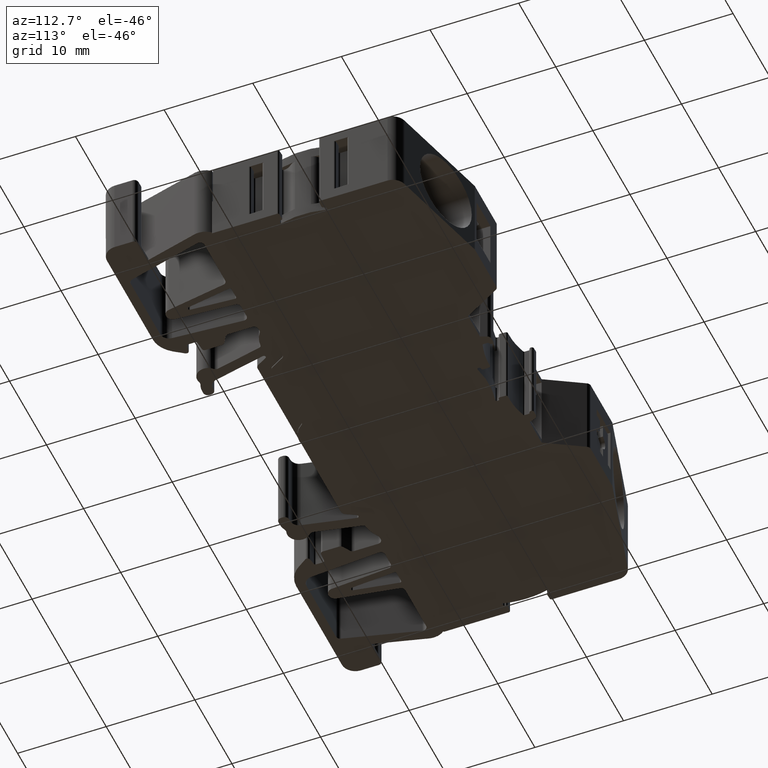
[diagram: clean part render]
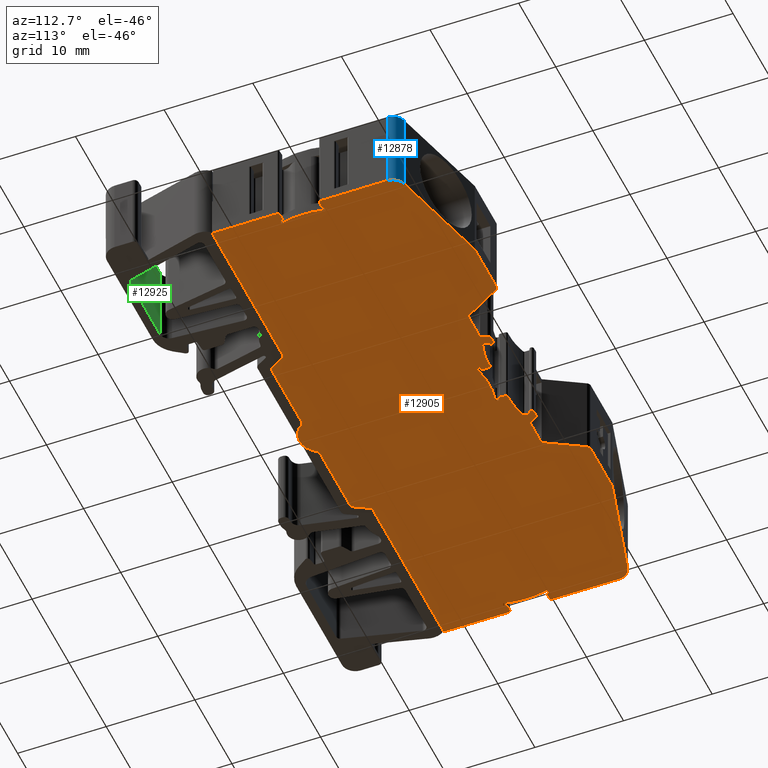
[diagram: same view with three faces highlighted in distinct colors, each labeled with its STEP entity id]
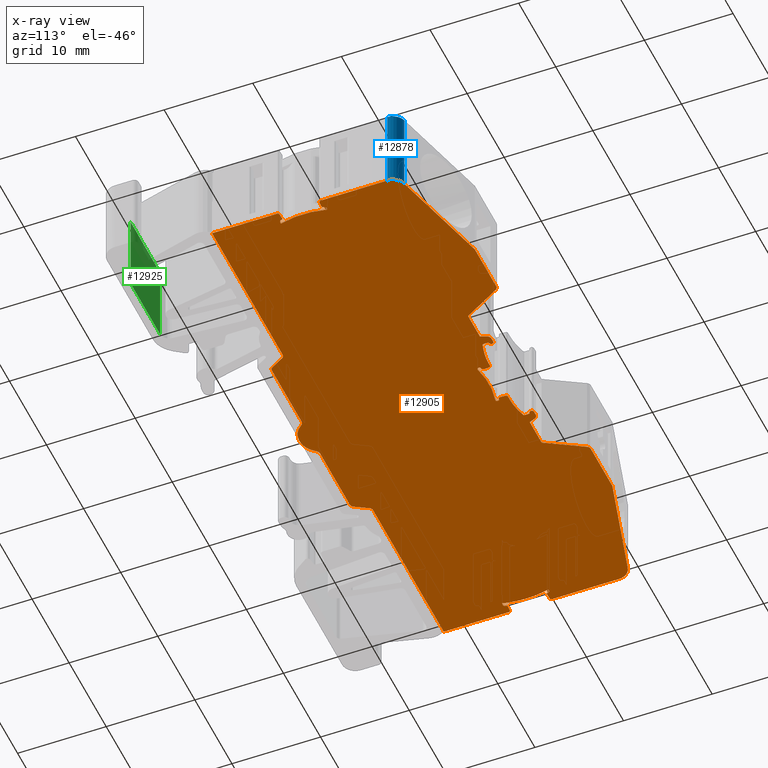
[diagram: x-ray of the same camera — body ghosted, the three highlighted faces saturated]
A machine part, auxiliary view with three faces highlighted in distinct colors.
The next image is the same camera in x-ray (body ghosted, the three faces saturated) — at least one of them is partly hidden behind the body in this view.
Their STEP definitions:

[orange] entity #12905 — the highlighted planar face has unit normal (0, 0, -1).
#1049 = DIRECTION ( 'NONE',  ( 0.0000000000000000000, 0.0000000000000000000, -1.000000000000000000 ) ) ;
#1057 = FACE_OUTER_BOUND ( 'NONE', #9037, .T. ) ;
#1068 = CARTESIAN_POINT ( 'NONE',  ( 179.3216100892540800, -35.61624874568827400, -25.80000000000001800 ) ) ;
#1088 = PLANE ( 'NONE',  #4733 ) ;
#1090 = DIRECTION ( 'NONE',  ( -1.000000000000000000, 0.0000000000000000000, -0.0000000000000000000 ) ) ;
#1190 = VERTEX_POINT ( 'NONE', #11233 ) ;
#1202 = VERTEX_POINT ( 'NONE', #11299 ) ;
#1205 = VERTEX_POINT ( 'NONE', #11310 ) ;
#1219 = VERTEX_POINT ( 'NONE', #11297 ) ;
#1226 = VERTEX_POINT ( 'NONE', #11316 ) ;
#1887 = DIRECTION ( 'NONE',  ( 0.0000000000000000000, 1.000000000000000000, 0.0000000000000000000 ) ) ;
#1905 = LINE ( 'NONE', #1906, #13208 ) ;
#1906 = CARTESIAN_POINT ( 'NONE',  ( 181.8966681694281200, 24.95324653133621600, -25.80000000000001800 ) ) ;
#1918 = CARTESIAN_POINT ( 'NONE',  ( 181.7484468255550800, 25.32370786793623200, -25.80000000000001800 ) ) ;
#1929 = DIRECTION ( 'NONE',  ( -1.000000000000000000, 0.0000000000000000000, 0.0000000000000000000 ) ) ;
#1937 = DIRECTION ( 'NONE',  ( -0.0000000000000000000, -0.0000000000000000000, 1.000000000000000000 ) ) ;
#1942 = CARTESIAN_POINT ( 'NONE',  ( 186.0432755812021000, 28.23407617920534900, -25.80000000000001800 ) ) ;
#1946 = DIRECTION ( 'NONE',  ( 1.000000000000000000, 0.0000000000000000000, 0.0000000000000000000 ) ) ;
#1951 = LINE ( 'NONE', #1942, #13235 ) ;
#1953 = DIRECTION ( 'NONE',  ( -1.000000000000000000, 0.0000000000000000000, 0.0000000000000000000 ) ) ;
#1964 = CARTESIAN_POINT ( 'NONE',  ( 176.8949775272640700, 25.32367216611772800, -25.80000000000001800 ) ) ;
#1968 = DIRECTION ( 'NONE',  ( -0.0000000000000000000, -0.0000000000000000000, 1.000000000000000000 ) ) ;
#1976 = DIRECTION ( 'NONE',  ( 0.9659396724863925600, 0.2587673648605649000, 0.0000000000000000000 ) ) ;
#1977 = DIRECTION ( 'NONE',  ( 1.000000000000000000, 0.0000000000000000000, 0.0000000000000000000 ) ) ;
#1978 = CARTESIAN_POINT ( 'NONE',  ( 181.7122460226960900, 25.76422653731683700, -25.80000000000001800 ) ) ;
#1980 = CARTESIAN_POINT ( 'NONE',  ( 184.7739044262520700, 27.01785733557236200, -25.80000000000001800 ) ) ;
#1982 = LINE ( 'NONE', #2021, #13313 ) ;
#1983 = DIRECTION ( 'NONE',  ( -1.000000000000000000, 0.0000000000000000000, 0.0000000000000000000 ) ) ;
#1984 = CARTESIAN_POINT ( 'NONE',  ( 176.9311433059630500, 25.56462190269218800, -25.80000000000001800 ) ) ;
#2006 = LINE ( 'NONE', #1984, #13278 ) ;
#2008 = LINE ( 'NONE', #1980, #13281 ) ;
#2016 = DIRECTION ( 'NONE',  ( -0.9999999924263932600, -0.0001230740152576164100, 0.0000000000000000000 ) ) ;
#2021 = CARTESIAN_POINT ( 'NONE',  ( 186.0432755812021000, 28.23407617920534900, -25.80000000000001800 ) ) ;
#2022 = DIRECTION ( 'NONE',  ( -0.0000000000000000000, -0.0000000000000000000, 1.000000000000000000 ) ) ;
#2030 = DIRECTION ( 'NONE',  ( -1.000000000000000000, -3.823948858331449800E-013, 0.0000000000000000000 ) ) ;
#2043 = DIRECTION ( 'NONE',  ( -0.0000000000000000000, -0.0000000000000000000, 1.000000000000000000 ) ) ;
#2060 = CARTESIAN_POINT ( 'NONE',  ( 176.9311187398062100, 25.76422664426328900, -25.80000000000001800 ) ) ;
#2066 = CARTESIAN_POINT ( 'NONE',  ( 184.8212961715360900, 27.98704060608279300, -25.80000000000001800 ) ) ;
#2069 = DIRECTION ( 'NONE',  ( -0.0000000000000000000, -0.0000000000000000000, 1.000000000000000000 ) ) ;
#2079 = CARTESIAN_POINT ( 'NONE',  ( 174.5446509023440500, 26.83550536229371300, -25.80000000000001800 ) ) ;
#2080 = DIRECTION ( 'NONE',  ( -1.000000000000000000, 1.404432126151094100E-013, 0.0000000000000000000 ) ) ;
#2083 = CARTESIAN_POINT ( 'NONE',  ( 181.7484468255550800, 25.41640045036017900, -25.80000000000001800 ) ) ;
#2088 = DIRECTION ( 'NONE',  ( -1.000000000000000000, -4.213296378452019700E-014, 0.0000000000000000000 ) ) ;
#2092 = DIRECTION ( 'NONE',  ( -1.000000000000000000, 5.617728504603324300E-014, 0.0000000000000000000 ) ) ;
#2095 = DIRECTION ( 'NONE',  ( 0.9659355963477978000, -0.2587825799937549200, 0.0000000000000000000 ) ) ;
#2097 = CARTESIAN_POINT ( 'NONE',  ( 173.3393952084961100, 27.74000503296018000, -25.80000000000001800 ) ) ;
#2099 = DIRECTION ( 'NONE',  ( -0.0000000000000000000, -0.0000000000000000000, 1.000000000000000000 ) ) ;
#2103 = LINE ( 'NONE', #2079, #13284 ) ;
#2104 = DIRECTION ( 'NONE',  ( -0.0000000000000000000, -0.0000000000000000000, 1.000000000000000000 ) ) ;
#2113 = DIRECTION ( 'NONE',  ( -1.000000000000000000, 0.0000000000000000000, 0.0000000000000000000 ) ) ;
#2116 = CARTESIAN_POINT ( 'NONE',  ( 185.3038348674621100, 27.74000503296018000, -25.80000000000001800 ) ) ;
#2118 = DIRECTION ( 'NONE',  ( -1.000000000000000000, 0.0000000000000000000, 0.0000000000000000000 ) ) ;
#2119 = CARTESIAN_POINT ( 'NONE',  ( 181.7122460226960900, 25.56462179423383300, -25.80000000000001800 ) ) ;
#2129 = DIRECTION ( 'NONE',  ( -1.000000000000000000, 7.022160630754155400E-015, 0.0000000000000000000 ) ) ;
#2138 = DIRECTION ( 'NONE',  ( 0.0000000000000000000, 0.0000000000000000000, -1.000000000000000000 ) ) ;
#2141 = CARTESIAN_POINT ( 'NONE',  ( 179.3217848849001800, 15.43936366840024200, -25.80000000000001800 ) ) ;
#2142 = LINE ( 'NONE', #2119, #13282 ) ;
#2156 = DIRECTION ( 'NONE',  ( -0.0000000000000000000, -0.0000000000000000000, 1.000000000000000000 ) ) ;
#2203 = LINE ( 'NONE', #2233, #13317 ) ;
#2215 = DIRECTION ( 'NONE',  ( 0.0000000000000000000, -1.000000000000000000, 0.0000000000000000000 ) ) ;
#2233 = CARTESIAN_POINT ( 'NONE',  ( 176.7467561833910800, 25.41639610662830500, -25.80000000000001800 ) ) ;
#2268 = CARTESIAN_POINT ( 'NONE',  ( 173.8218185827921600, 27.98704060608279300, -25.80000000000001800 ) ) ;
#2271 = DIRECTION ( 'NONE',  ( -0.0000000000000000000, -0.0000000000000000000, 1.000000000000000000 ) ) ;
#2273 = DIRECTION ( 'NONE',  ( -1.000000000000000000, 0.0000000000000000000, 0.0000000000000000000 ) ) ;
#2350 = DIRECTION ( 'NONE',  ( 0.04365492390681080500, 0.9990466693897189800, 0.0000000000000000000 ) ) ;
#2360 = CARTESIAN_POINT ( 'NONE',  ( 176.9061898492480500, 26.38150606763376500, -25.80000000000001800 ) ) ;
#2362 = DIRECTION ( 'NONE',  ( -0.0000000000000000000, -0.0000000000000000000, 1.000000000000000000 ) ) ;
#2368 = DIRECTION ( 'NONE',  ( -1.000000000000000000, 0.0000000000000000000, 0.0000000000000000000 ) ) ;
#2373 = CARTESIAN_POINT ( 'NONE',  ( 176.8949775272640700, 25.41639610662830500, -25.80000000000001800 ) ) ;
#2375 = CARTESIAN_POINT ( 'NONE',  ( 181.5398024751940800, 26.39017176521122500, -25.80000000000001800 ) ) ;
#2379 = DIRECTION ( 'NONE',  ( -0.0000000000000000000, -0.0000000000000000000, 1.000000000000000000 ) ) ;
#2380 = LINE ( 'NONE', #2375, #13329 ) ;
#2389 = CARTESIAN_POINT ( 'NONE',  ( 209.7721758651223400, 14.84144755581753800, -25.80000000000000100 ) ) ;
#2394 = DIRECTION ( 'NONE',  ( 0.9990477967756292700, -0.04362911594062896000, 0.0000000000000000000 ) ) ;
#2402 = DIRECTION ( 'NONE',  ( -1.000000000000000000, 1.755540157688538900E-014, 0.0000000000000000000 ) ) ;
#2403 = CARTESIAN_POINT ( 'NONE',  ( 209.6659154672882200, 14.82407208144015700, -25.80000000000000400 ) ) ;
#2409 = CARTESIAN_POINT ( 'NONE',  ( 209.5885040622367200, 14.75204215622161100, -25.80000000000000100 ) ) ;
#2415 = LINE ( 'NONE', #2422, #13379 ) ;
#2416 = CARTESIAN_POINT ( 'NONE',  ( 181.6552771971049900, 17.84459679403024900, -25.80000000000000400 ) ) ;
#2418 = CARTESIAN_POINT ( 'NONE',  ( 209.5650289991994000, 14.70015517358267900, -25.80000000000000100 ) ) ;
#2422 = CARTESIAN_POINT ( 'NONE',  ( 172.5999544947560800, 13.14590735506274800, -25.80000000000001800 ) ) ;
#2423 = DIRECTION ( 'NONE',  ( 0.0000000000000000000, 1.000000000000000000, 0.0000000000000000000 ) ) ;
#2424 = CARTESIAN_POINT ( 'NONE',  ( 209.7193565686138200, 14.84375421143379000, -25.80000000000000100 ) ) ;
#2427 = CARTESIAN_POINT ( 'NONE',  ( 209.5635304894156300, 14.64730667873010200, -25.80000000000000100 ) ) ;
#2431 = LINE ( 'NONE', #2416, #13346 ) ;
#2777 = EDGE_CURVE ( 'NONE', #8479, #8535, #1905, .T. ) ;
#2782 = EDGE_CURVE ( 'NONE', #8446, #8479, #13230, .T. ) ;
#2789 = EDGE_CURVE ( 'NONE', #8431, #8509, #1951, .T. ) ;
#2793 = EDGE_CURVE ( 'NONE', #8465, #8396, #13238, .T. ) ;
#2799 = EDGE_CURVE ( 'NONE', #8437, #8480, #2008, .T. ) ;
#2800 = EDGE_CURVE ( 'NONE', #8463, #8426, #1982, .T. ) ;
#2802 = EDGE_CURVE ( 'NONE', #8524, #8408, #13266, .T. ) ;
#2805 = EDGE_CURVE ( 'NONE', #1226, #8527, #2006, .T. ) ;
#2812 = EDGE_CURVE ( 'NONE', #1219, #8502, #13308, .T. ) ;
#2819 = EDGE_CURVE ( 'NONE', #8535, #8393, #13316, .T. ) ;
#2823 = EDGE_CURVE ( 'NONE', #8463, #8434, #13302, .T. ) ;
#2827 = EDGE_CURVE ( 'NONE', #8451, #8429, #2103, .T. ) ;
#2829 = EDGE_CURVE ( 'NONE', #8431, #8501, #13287, .T. ) ;
#2833 = EDGE_CURVE ( 'NONE', #8396, #8446, #13306, .T. ) ;
#2835 = EDGE_CURVE ( 'NONE', #8393, #8408, #2142, .T. ) ;
#2841 = EDGE_CURVE ( 'NONE', #8485, #8509, #13319, .T. ) ;
#2856 = EDGE_CURVE ( 'NONE', #8435, #8465, #2203, .T. ) ;
#2874 = EDGE_CURVE ( 'NONE', #8123, #8426, #13270, .T. ) ;
#2896 = EDGE_CURVE ( 'NONE', #8524, #8506, #2380, .T. ) ;
#2899 = EDGE_CURVE ( 'NONE', #8527, #8435, #13355, .T. ) ;
#2906 = EDGE_CURVE ( 'NONE', #8518, #8490, #13374, .T. ) ;
#2910 = EDGE_CURVE ( 'NONE', #8607, #8551, #5272, .T. ) ;
#2917 = EDGE_CURVE ( 'NONE', #8586, #8569, #2431, .T. ) ;
#2918 = EDGE_CURVE ( 'NONE', #8565, #8503, #2415, .T. ) ;
#2938 = EDGE_CURVE ( 'NONE', #8518, #8502, #7130, .T. ) ;
#2940 = EDGE_CURVE ( 'NONE', #8505, #8506, #13391, .T. ) ;
#2942 = EDGE_CURVE ( 'NONE', #1202, #8496, #7136, .T. ) ;
#2946 = EDGE_CURVE ( 'NONE', #8485, #8612, #7160, .T. ) ;
#2955 = EDGE_CURVE ( 'NONE', #8503, #8434, #7195, .T. ) ;
#2960 = EDGE_CURVE ( 'NONE', #8521, #8558, #7242, .T. ) ;
#2969 = EDGE_CURVE ( 'NONE', #8569, #8571, #5305, .T. ) ;
#2972 = EDGE_CURVE ( 'NONE', #8604, #8620, #7287, .T. ) ;
#2973 = EDGE_CURVE ( 'NONE', #8639, #8561, #13411, .T. ) ;
#2981 = EDGE_CURVE ( 'NONE', #8575, #8521, #5286, .T. ) ;
#2984 = EDGE_CURVE ( 'NONE', #8547, #8560, #7322, .T. ) ;
#2990 = EDGE_CURVE ( 'NONE', #8568, #8579, #5304, .T. ) ;
#2992 = EDGE_CURVE ( 'NONE', #8575, #8581, #5294, .T. ) ;
#3002 = EDGE_CURVE ( 'NONE', #8568, #8560, #5321, .T. ) ;
#3007 = EDGE_CURVE ( 'NONE', #8564, #8571, #5325, .T. ) ;
#3009 = EDGE_CURVE ( 'NONE', #8607, #8593, #6351, .T. ) ;
#3015 = EDGE_CURVE ( 'NONE', #8546, #8551, #5330, .T. ) ;
#3020 = EDGE_CURVE ( 'NONE', #8547, #8628, #5322, .T. ) ;
#3033 = EDGE_CURVE ( 'NONE', #8658, #8649, #5276, .T. ) ;
#3034 = EDGE_CURVE ( 'NONE', #8604, #8586, #5290, .T. ) ;
#3042 = EDGE_CURVE ( 'NONE', #8620, #8639, #6591, .T. ) ;
#3043 = EDGE_CURVE ( 'NONE', #8561, #8630, #6620, .T. ) ;
#3047 = EDGE_CURVE ( 'NONE', #8641, #8581, #6630, .T. ) ;
#3057 = EDGE_CURVE ( 'NONE', #8579, #1190, #6715, .T. ) ;
#3058 = EDGE_CURVE ( 'NONE', #8594, #8660, #6728, .T. ) ;
#3059 = EDGE_CURVE ( 'NONE', #8594, #8638, #5316, .T. ) ;
#3062 = EDGE_CURVE ( 'NONE', #8631, #8617, #6710, .T. ) ;
#3064 = EDGE_CURVE ( 'NONE', #8496, #8616, #6758, .T. ) ;
#3066 = EDGE_CURVE ( 'NONE', #8631, #8565, #6698, .T. ) ;
#3067 = EDGE_CURVE ( 'NONE', #8616, #8451, #13467, .T. ) ;
#3074 = EDGE_CURVE ( 'NONE', #8429, #8598, #13514, .T. ) ;
#3077 = EDGE_CURVE ( 'NONE', #8658, #8617, #6795, .T. ) ;
#3092 = EDGE_CURVE ( 'NONE', #8612, #8661, #6876, .T. ) ;
#3097 = EDGE_CURVE ( 'NONE', #8646, #8638, #6843, .T. ) ;
#3101 = EDGE_CURVE ( 'NONE', #8480, #8647, #13509, .T. ) ;
#3107 = EDGE_CURVE ( 'NONE', #8667, #8728, #13503, .T. ) ;
#3108 = EDGE_CURVE ( 'NONE', #8564, #8584, #6918, .T. ) ;
#3112 = EDGE_CURVE ( 'NONE', #8661, #8646, #6892, .T. ) ;
#3113 = EDGE_CURVE ( 'NONE', #8713, #8687, #6899, .T. ) ;
#3114 = EDGE_CURVE ( 'NONE', #8505, #8632, #6893, .T. ) ;
#3115 = EDGE_CURVE ( 'NONE', #8693, #8501, #6907, .T. ) ;
#3116 = EDGE_CURVE ( 'NONE', #8630, #8649, #6912, .T. ) ;
#3118 = EDGE_CURVE ( 'NONE', #8558, #8665, #5345, .T. ) ;
#3120 = EDGE_CURVE ( 'NONE', #8609, #8546, #6941, .T. ) ;
#3122 = EDGE_CURVE ( 'NONE', #8671, #8628, #6945, .T. ) ;
#3123 = EDGE_CURVE ( 'NONE', #8660, #8599, #6952, .T. ) ;
#3124 = EDGE_CURVE ( 'NONE', #8684, #8713, #13517, .T. ) ;
#3125 = EDGE_CURVE ( 'NONE', #8714, #8684, #6951, .T. ) ;
#3126 = EDGE_CURVE ( 'NONE', #8599, #8597, #13513, .T. ) ;
#3127 = EDGE_CURVE ( 'NONE', #8640, #8664, #6932, .T. ) ;
#3128 = EDGE_CURVE ( 'NONE', #8595, #8671, #6957, .T. ) ;
#3129 = EDGE_CURVE ( 'NONE', #8597, #8655, #6939, .T. ) ;
#3133 = EDGE_CURVE ( 'NONE', #8689, #8685, #7027, .T. ) ;
#3134 = EDGE_CURVE ( 'NONE', #8647, #8693, #6995, .T. ) ;
#3135 = EDGE_CURVE ( 'NONE', #1205, #8584, #13555, .T. ) ;
#3141 = EDGE_CURVE ( 'NONE', #8640, #8593, #5350, .T. ) ;
#3143 = EDGE_CURVE ( 'NONE', #8598, #8490, #7001, .T. ) ;
#3144 = EDGE_CURVE ( 'NONE', #8664, #8689, #7008, .T. ) ;
#3146 = EDGE_CURVE ( 'NONE', #8685, #8714, #13536, .T. ) ;
#3153 = EDGE_CURVE ( 'NONE', #8641, #8609, #13562, .T. ) ;
#3154 = EDGE_CURVE ( 'NONE', #8632, #8437, #13543, .T. ) ;
#3157 = EDGE_CURVE ( 'NONE', #8655, #8665, #7063, .T. ) ;
#3172 = EDGE_CURVE ( 'NONE', #8666, #8676, #7103, .T. ) ;
#3173 = EDGE_CURVE ( 'NONE', #8696, #8667, #13547, .T. ) ;
#3174 = EDGE_CURVE ( 'NONE', #8703, #8666, #13570, .T. ) ;
#3189 = EDGE_CURVE ( 'NONE', #8690, #8703, #15748, .T. ) ;
#3196 = EDGE_CURVE ( 'NONE', #8686, #8595, #15794, .T. ) ;
#3200 = EDGE_CURVE ( 'NONE', #8676, #8686, #13574, .T. ) ;
#3208 = EDGE_CURVE ( 'NONE', #8687, #8696, #13621, .T. ) ;
#3220 = EDGE_CURVE ( 'NONE', #8728, #8690, #13629, .T. ) ;
#4247 = CARTESIAN_POINT ( 'NONE',  ( 174.0688541559147200, 27.98704060608279300, -25.80000000000001800 ) ) ;
#4438 = CIRCLE ( 'NONE', #4471, 0.2470355731225559700 ) ;
#4463 = CIRCLE ( 'NONE', #4466, 0.1996047430830039100 ) ;
#4466 = AXIS2_PLACEMENT_3D ( 'NONE', #9976, #10017, #10018 ) ;
#4471 = AXIS2_PLACEMENT_3D ( 'NONE', #9844, #9813, #9859 ) ;
#4514 = CIRCLE ( 'NONE', #4523, 9.999999999999758400 ) ;
#4523 = AXIS2_PLACEMENT_3D ( 'NONE', #16565, #16577, #16541 ) ;
#4733 = AXIS2_PLACEMENT_3D ( 'NONE', #1068, #1049, #1090 ) ;
#5272 = B_SPLINE_CURVE_WITH_KNOTS ( 'NONE', 3,
 ( #2389, #2424, #2403, #2409, #2418, #2427 ),
 .UNSPECIFIED., .F., .F.,
 ( 4, 2, 4 ),
 ( 0.0000000000000000000, 0.5000000000000000000, 1.000000000000000000 ),
 .UNSPECIFIED. ) ;
#5276 = B_SPLINE_CURVE_WITH_KNOTS ( 'NONE', 3,
 ( #6542, #6549, #6577, #6540, #6534, #6571 ),
 .UNSPECIFIED., .F., .F.,
 ( 4, 2, 4 ),
 ( 0.0000000000000000000, 0.5000000000000000000, 1.000000000000000000 ),
 .UNSPECIFIED. ) ;
#5286 = B_SPLINE_CURVE_WITH_KNOTS ( 'NONE', 3,
 ( #7300, #7334, #7305, #7315, #7301, #7299 ),
 .UNSPECIFIED., .F., .F.,
 ( 4, 2, 4 ),
 ( 0.0000000000000000000, 0.5000000000000000000, 1.000000000000000000 ),
 .UNSPECIFIED. ) ;
#5290 = B_SPLINE_CURVE_WITH_KNOTS ( 'NONE', 3,
 ( #6544, #6545, #6561, #6550, #6536, #6560 ),
 .UNSPECIFIED., .F., .F.,
 ( 4, 2, 4 ),
 ( 0.0000000000000000000, 0.5000000000000000000, 1.000000000000000000 ),
 .UNSPECIFIED. ) ;
#5294 = B_SPLINE_CURVE_WITH_KNOTS ( 'NONE', 3,
 ( #7294, #7298, #7369, #7356, #7355, #7375 ),
 .UNSPECIFIED., .F., .F.,
 ( 4, 2, 4 ),
 ( 0.0000000000000000000, 0.5000000000000000000, 1.000000000000000000 ),
 .UNSPECIFIED. ) ;
#5304 = B_SPLINE_CURVE_WITH_KNOTS ( 'NONE', 3,
 ( #7366, #7368, #7342, #7373, #7346, #7351 ),
 .UNSPECIFIED., .F., .F.,
 ( 4, 2, 4 ),
 ( 0.0000000000000000000, 0.5000000000000000000, 1.000000000000000000 ),
 .UNSPECIFIED. ) ;
#5305 = B_SPLINE_CURVE_WITH_KNOTS ( 'NONE', 3,
 ( #7243, #7231, #7249, #7255, #7252, #7258 ),
 .UNSPECIFIED., .F., .F.,
 ( 4, 2, 4 ),
 ( 0.0000000000000000000, 0.5000000000000000000, 1.000000000000000000 ),
 .UNSPECIFIED. ) ;
#5316 = B_SPLINE_CURVE_WITH_KNOTS ( 'NONE', 3,
 ( #6702, #6704, #6697, #6714, #6727, #6739 ),
 .UNSPECIFIED., .F., .F.,
 ( 4, 2, 4 ),
 ( 0.0000000000000000000, 0.5000000000000000000, 1.000000000000000000 ),
 .UNSPECIFIED. ) ;
#5321 = B_SPLINE_CURVE_WITH_KNOTS ( 'NONE', 3,
 ( #6379, #6385, #6357, #6373, #6380, #6382 ),
 .UNSPECIFIED., .F., .F.,
 ( 4, 2, 4 ),
 ( 0.0000000000000000000, 0.5000000000000000000, 1.000000000000000000 ),
 .UNSPECIFIED. ) ;
#5322 = B_SPLINE_CURVE_WITH_KNOTS ( 'NONE', 3,
 ( #6433, #6430, #6404, #6432, #6439, #6423 ),
 .UNSPECIFIED., .F., .F.,
 ( 4, 2, 4 ),
 ( 0.0000000000000000000, 0.5000000000000000000, 1.000000000000000000 ),
 .UNSPECIFIED. ) ;
#5325 = B_SPLINE_CURVE_WITH_KNOTS ( 'NONE', 3,
 ( #6350, #6363, #6375, #6358, #6387, #6370 ),
 .UNSPECIFIED., .F., .F.,
 ( 4, 2, 4 ),
 ( 0.0000000000000000000, 0.5000000000000000000, 1.000000000000000000 ),
 .UNSPECIFIED. ) ;
#5330 = B_SPLINE_CURVE_WITH_KNOTS ( 'NONE', 3,
 ( #6427, #6437, #6418, #6429, #6409, #6408 ),
 .UNSPECIFIED., .F., .F.,
 ( 4, 2, 4 ),
 ( 0.0000000000000000000, 0.5000000000000000000, 1.000000000000000000 ),
 .UNSPECIFIED. ) ;
#5345 = B_SPLINE_CURVE_WITH_KNOTS ( 'NONE', 3,
 ( #6940, #6975, #6950, #6959, #6947, #6973 ),
 .UNSPECIFIED., .F., .F.,
 ( 4, 2, 4 ),
 ( 0.0000000000000000000, 0.5000000000000000000, 1.000000000000000000 ),
 .UNSPECIFIED. ) ;
#5350 = B_SPLINE_CURVE_WITH_KNOTS ( 'NONE', 3,
 ( #6987, #6991, #7024, #6997, #6992, #7025 ),
 .UNSPECIFIED., .F., .F.,
 ( 4, 2, 4 ),
 ( 0.0000000000000000000, 0.5000000000000000000, 1.000000000000000000 ),
 .UNSPECIFIED. ) ;
#6350 = CARTESIAN_POINT ( 'NONE',  ( 149.2829403348108300, 19.66463029271137200, -25.80000000000000100 ) ) ;
#6351 = LINE ( 'NONE', #6360, #13419 ) ;
#6357 = CARTESIAN_POINT ( 'NONE',  ( 149.0580464754168600, 14.75204297822502000, -25.80000000000000400 ) ) ;
#6358 = CARTESIAN_POINT ( 'NONE',  ( 149.1051881848755400, 19.57110888510444700, -25.80000000000001800 ) ) ;
#6360 = CARTESIAN_POINT ( 'NONE',  ( 181.5778977227934700, 16.07271139915344800, -25.80000000000000100 ) ) ;
#6361 = DIRECTION ( 'NONE',  ( 0.9990477967756290500, -0.04362911594063379600, 0.0000000000000000000 ) ) ;
#6363 = CARTESIAN_POINT ( 'NONE',  ( 149.2287296654048700, 19.66419895987250400, -25.80000000000001500 ) ) ;
#6370 = CARTESIAN_POINT ( 'NONE',  ( 149.0830206706281700, 19.47030249847696800, -25.80000000000000100 ) ) ;
#6373 = CARTESIAN_POINT ( 'NONE',  ( 148.9806353438782800, 14.82407216757171400, -25.80000000000000100 ) ) ;
#6375 = CARTESIAN_POINT ( 'NONE',  ( 149.1818895759541900, 19.64497754724946400, -25.80000000000001800 ) ) ;
#6379 = CARTESIAN_POINT ( 'NONE',  ( 149.0830206437494500, 14.64730770961998200, -25.80000000000000100 ) ) ;
#6380 = CARTESIAN_POINT ( 'NONE',  ( 148.9271946331494100, 14.84375411109597900, -25.80000000000000100 ) ) ;
#6382 = CARTESIAN_POINT ( 'NONE',  ( 148.8743755862820400, 14.84144756843831700, -25.80000000000000100 ) ) ;
#6385 = CARTESIAN_POINT ( 'NONE',  ( 149.0815216702327700, 14.70015652823606800, -25.80000000000000100 ) ) ;
#6387 = CARTESIAN_POINT ( 'NONE',  ( 149.0850154482790200, 19.52519531253781800, -25.80000000000001800 ) ) ;
#6404 = CARTESIAN_POINT ( 'NONE',  ( 148.1639691819886500, 14.79007908808232400, -25.80000000000000400 ) ) ;
#6408 = CARTESIAN_POINT ( 'NONE',  ( 209.5635304894156300, 14.64730667873010200, -25.80000000000000100 ) ) ;
#6409 = CARTESIAN_POINT ( 'NONE',  ( 209.5615357431807400, 14.59241406892001300, -25.80000000000001800 ) ) ;
#6418 = CARTESIAN_POINT ( 'NONE',  ( 209.4646622728102700, 14.47263199119771400, -25.80000000000001800 ) ) ;
#6423 = CARTESIAN_POINT ( 'NONE',  ( 148.0732481624698100, 14.61500499063392100, -25.80000000000000800 ) ) ;
#6427 = CARTESIAN_POINT ( 'NONE',  ( 209.3636116061284700, 14.45297880150515200, -25.80000000000000100 ) ) ;
#6429 = CARTESIAN_POINT ( 'NONE',  ( 209.5413631506150400, 14.54650060945144200, -25.80000000000001800 ) ) ;
#6430 = CARTESIAN_POINT ( 'NONE',  ( 148.2136588142263100, 14.81259360494950900, -25.80000000000000100 ) ) ;
#6432 = CARTESIAN_POINT ( 'NONE',  ( 148.0935664410700100, 14.71653470862231200, -25.80000000000000100 ) ) ;
#6433 = CARTESIAN_POINT ( 'NONE',  ( 148.2645154541361900, 14.81481454997950900, -25.80000000000000100 ) ) ;
#6437 = CARTESIAN_POINT ( 'NONE',  ( 209.4178224167340500, 14.45341043750794600, -25.80000000000001500 ) ) ;
#6439 = CARTESIAN_POINT ( 'NONE',  ( 148.0732412773243700, 14.66591010254603600, -25.80000000000000100 ) ) ;
#6534 = CARTESIAN_POINT ( 'NONE',  ( 166.6777230731564700, 31.61042762064702300, -25.80000000000000100 ) ) ;
#6536 = CARTESIAN_POINT ( 'NONE',  ( 148.2136588142262800, 19.30501565524774000, -25.80000000000000100 ) ) ;
#6540 = CARTESIAN_POINT ( 'NONE',  ( 166.7648817176837500, 31.58707346904235500, -25.80000000000000100 ) ) ;
#6542 = CARTESIAN_POINT ( 'NONE',  ( 167.0234692112918000, 31.36042690512269700, -25.80000000000000100 ) ) ;
#6544 = CARTESIAN_POINT ( 'NONE',  ( 148.0732461534304600, 19.50260426957685700, -25.80000000000000400 ) ) ;
#6545 = CARTESIAN_POINT ( 'NONE',  ( 148.0732412773243700, 19.45169915765121600, -25.80000000000000100 ) ) ;
#6549 = CARTESIAN_POINT ( 'NONE',  ( 166.9798362287560800, 31.43600212691980600, -25.80000000000000100 ) ) ;
#6550 = CARTESIAN_POINT ( 'NONE',  ( 148.1639691819887000, 19.32753017211493000, -25.80000000000000100 ) ) ;
#6560 = CARTESIAN_POINT ( 'NONE',  ( 148.2645154541361900, 19.30279471021771400, -25.80000000000000100 ) ) ;
#6561 = CARTESIAN_POINT ( 'NONE',  ( 148.0935664410700700, 19.40107455157494000, -25.80000000000000400 ) ) ;
#6571 = CARTESIAN_POINT ( 'NONE',  ( 166.5904565199155300, 31.61042765594742600, -25.80000000000000800 ) ) ;
#6577 = CARTESIAN_POINT ( 'NONE',  ( 166.9160317389383600, 31.49980677245683200, -25.80000000000000400 ) ) ;
#6588 = CARTESIAN_POINT ( 'NONE',  ( 179.3232755812014700, 19.66463029271150000, -25.80000000000000100 ) ) ;
#6591 = LINE ( 'NONE', #6626, #13426 ) ;
#6598 = DIRECTION ( 'NONE',  ( 1.000000000000000000, 0.0000000000000000000, 0.0000000000000000000 ) ) ;
#6601 = DIRECTION ( 'NONE',  ( 0.0000000000000000000, 1.000000000000000000, 0.0000000000000000000 ) ) ;
#6602 = CARTESIAN_POINT ( 'NONE',  ( 149.1850165070683800, 28.50536400858699100, -25.80000000000000100 ) ) ;
#6614 = DIRECTION ( 'NONE',  ( 0.9659258718755039400, 0.2588188749715668600, 0.0000000000000000000 ) ) ;
#6620 = LINE ( 'NONE', #6602, #13394 ) ;
#6626 = CARTESIAN_POINT ( 'NONE',  ( 148.0732499837106400, 12.15649856078289700, -25.80000000000000100 ) ) ;
#6630 = LINE ( 'NONE', #6588, #13429 ) ;
#6697 = CARTESIAN_POINT ( 'NONE',  ( 191.8816695320900300, 31.58707350530819700, -25.80000000000000400 ) ) ;
#6698 = LINE ( 'NONE', #6748, #13487 ) ;
#6702 = CARTESIAN_POINT ( 'NONE',  ( 192.0560947831845100, 31.61042765594741900, -25.80000000000000100 ) ) ;
#6704 = CARTESIAN_POINT ( 'NONE',  ( 191.9688282064941500, 31.61042764520327700, -25.80000000000000100 ) ) ;
#6710 = LINE ( 'NONE', #6783, #13406 ) ;
#6714 = CARTESIAN_POINT ( 'NONE',  ( 191.7305194579418200, 31.49980680653961000, -25.80000000000000100 ) ) ;
#6715 = LINE ( 'NONE', #6725, #13399 ) ;
#6725 = CARTESIAN_POINT ( 'NONE',  ( 179.3234426320405000, 14.45287845167088000, -25.80000000000000400 ) ) ;
#6726 = DIRECTION ( 'NONE',  ( 0.9999999999944205700, -3.340484479243183300E-006, 0.0000000000000000000 ) ) ;
#6727 = CARTESIAN_POINT ( 'NONE',  ( 191.6667149453722600, 31.43600214722786700, -25.80000000000000100 ) ) ;
#6728 = LINE ( 'NONE', #6730, #13396 ) ;
#6730 = CARTESIAN_POINT ( 'NONE',  ( 213.8060058011269600, 31.61042765594738300, -25.80000000000000100 ) ) ;
#6731 = DIRECTION ( 'NONE',  ( 1.000000000000000000, -0.0000000000000000000, 0.0000000000000000000 ) ) ;
#6739 = CARTESIAN_POINT ( 'NONE',  ( 191.6230819511119400, 31.36042690512297400, -25.80000000000000100 ) ) ;
#6742 = DIRECTION ( 'NONE',  ( -1.000000000000000000, 3.689805607677395400E-015, 0.0000000000000000000 ) ) ;
#6744 = CARTESIAN_POINT ( 'NONE',  ( 173.7578213911740800, 27.16174945778069400, -25.80000000000001800 ) ) ;
#6746 = DIRECTION ( 'NONE',  ( 1.000000000000000000, -0.0000000000000000000, 0.0000000000000000000 ) ) ;
#6747 = DIRECTION ( 'NONE',  ( 1.463357527354439900E-005, -0.9999999998929292000, 0.0000000000000000000 ) ) ;
#6748 = CARTESIAN_POINT ( 'NONE',  ( 213.8060058011269600, 27.24152987253115300, -25.80000000000000100 ) ) ;
#6755 = CARTESIAN_POINT ( 'NONE',  ( 173.9082669770462000, 27.16174932767671300, -25.80000000000001800 ) ) ;
#6756 = DIRECTION ( 'NONE',  ( -1.000000000000000000, -3.459171233069305800E-013, 0.0000000000000000000 ) ) ;
#6757 = DIRECTION ( 'NONE',  ( -0.4999996466730368700, 0.8660256077777598300, 0.0000000000000000000 ) ) ;
#6758 = LINE ( 'NONE', #6744, #13484 ) ;
#6772 = DIRECTION ( 'NONE',  ( -0.0000000000000000000, -0.0000000000000000000, 1.000000000000000000 ) ) ;
#6778 = CARTESIAN_POINT ( 'NONE',  ( 176.4917605822631700, 34.10136701074521400, -25.80000000000001800 ) ) ;
#6781 = DIRECTION ( 'NONE',  ( -0.0000000000000000000, -0.0000000000000000000, 1.000000000000000000 ) ) ;
#6783 = CARTESIAN_POINT ( 'NONE',  ( 169.4015125559714900, 27.24152987253115300, -25.80000000000000100 ) ) ;
#6795 = LINE ( 'NONE', #6819, #13478 ) ;
#6819 = CARTESIAN_POINT ( 'NONE',  ( 167.0234693926030000, 31.36042700980268400, -25.80000000000000100 ) ) ;
#6825 = DIRECTION ( 'NONE',  ( 0.4999994826828331200, -0.8660257024574382600, 0.0000000000000000000 ) ) ;
#6838 = CARTESIAN_POINT ( 'NONE',  ( 179.3232882513299800, 6.553695950551169600, -25.80000000000000100 ) ) ;
#6839 = CARTESIAN_POINT ( 'NONE',  ( 184.7349655807541900, 27.16317629042684000, -25.80000000000001800 ) ) ;
#6840 = DIRECTION ( 'NONE',  ( -1.000000000000000000, 9.224465176000633800E-014, 0.0000000000000000000 ) ) ;
#6841 = DIRECTION ( 'NONE',  ( 0.0000000000000000000, 0.0000000000000000000, -1.000000000000000000 ) ) ;
#6842 = CARTESIAN_POINT ( 'NONE',  ( 186.0432755812021000, 13.14590735506274800, -25.80000000000001800 ) ) ;
#6843 = LINE ( 'NONE', #6849, #13488 ) ;
#6844 = DIRECTION ( 'NONE',  ( 0.4999994941854771800, 0.8660256958163926600, 0.0000000000000000000 ) ) ;
#6845 = DIRECTION ( 'NONE',  ( -0.0000000000000000000, -0.0000000000000000000, 1.000000000000000000 ) ) ;
#6849 = CARTESIAN_POINT ( 'NONE',  ( 189.2450386064319900, 27.24152987253115300, -25.80000000000000100 ) ) ;
#6853 = DIRECTION ( 'NONE',  ( 0.0000000000000000000, -1.000000000000000000, 0.0000000000000000000 ) ) ;
#6876 = LINE ( 'NONE', #6842, #13458 ) ;
#6886 = CARTESIAN_POINT ( 'NONE',  ( 179.3232629110730200, 6.553695950551169600, -25.80000000000000100 ) ) ;
#6892 = LINE ( 'NONE', #6896, #13461 ) ;
#6893 = LINE ( 'NONE', #6902, #13492 ) ;
#6894 = DIRECTION ( 'NONE',  ( -1.000000000000000000, 0.0000000000000000000, -0.0000000000000000000 ) ) ;
#6896 = CARTESIAN_POINT ( 'NONE',  ( 213.8060058011269600, 27.24152987253106800, -25.80000000000000100 ) ) ;
#6898 = DIRECTION ( 'NONE',  ( 1.000000000000000000, 0.0000000000000000000, 0.0000000000000000000 ) ) ;
#6899 = LINE ( 'NONE', #6909, #13476 ) ;
#6900 = DIRECTION ( 'NONE',  ( 1.000000000000000000, -0.0000000000000000000, 0.0000000000000000000 ) ) ;
#6902 = CARTESIAN_POINT ( 'NONE',  ( 182.1460939633410900, 26.57913245505919900, -25.80000000000001800 ) ) ;
#6903 = DIRECTION ( 'NONE',  ( -1.000000000000000000, 0.0000000000000000000, 0.0000000000000000000 ) ) ;
#6906 = DIRECTION ( 'NONE',  ( 0.9999999951386482300, -9.860376963155899500E-005, 0.0000000000000000000 ) ) ;
#6907 = LINE ( 'NONE', #6910, #13493 ) ;
#6909 = CARTESIAN_POINT ( 'NONE',  ( 213.8060058011269600, 5.353695264897070600, -25.80000000000000100 ) ) ;
#6910 = CARTESIAN_POINT ( 'NONE',  ( 184.8854110271010400, 27.66479624056026400, -25.80000000000001800 ) ) ;
#6911 = DIRECTION ( 'NONE',  ( -0.8660743162900129700, 0.4999152714838650500, 0.0000000000000000000 ) ) ;
#6912 = LINE ( 'NONE', #6915, #13499 ) ;
#6915 = CARTESIAN_POINT ( 'NONE',  ( 213.8060058011269600, 31.61043000906164800, -25.80000000000000100 ) ) ;
#6918 = LINE ( 'NONE', #6926, #13502 ) ;
#6920 = DIRECTION ( 'NONE',  ( -1.000000000000000000, 0.0000000000000000000, 0.0000000000000000000 ) ) ;
#6926 = CARTESIAN_POINT ( 'NONE',  ( 179.3232755812014700, 19.66463029271150000, -25.80000000000000100 ) ) ;
#6928 = DIRECTION ( 'NONE',  ( 0.0000000000000000000, 0.0000000000000000000, -1.000000000000000000 ) ) ;
#6932 = LINE ( 'NONE', #6936, #13494 ) ;
#6933 = DIRECTION ( 'NONE',  ( -0.0000000000000000000, -0.0000000000000000000, -1.000000000000000000 ) ) ;
#6935 = CARTESIAN_POINT ( 'NONE',  ( 197.8732685254500200, 31.61042837215304900, -25.80000000000000100 ) ) ;
#6936 = CARTESIAN_POINT ( 'NONE',  ( 210.5732940936605100, 12.15650121838407900, -25.80000000000000100 ) ) ;
#6937 = DIRECTION ( 'NONE',  ( -8.220965632389480600E-007, -0.9999999999996621600, 0.0000000000000000000 ) ) ;
#6938 = CARTESIAN_POINT ( 'NONE',  ( 148.0732611066371800, 12.15649856078289700, -25.80000000000000100 ) ) ;
#6939 = LINE ( 'NONE', #6948, #13480 ) ;
#6940 = CARTESIAN_POINT ( 'NONE',  ( 210.3820356119333900, 19.30279470601085000, -25.80000000000000100 ) ) ;
#6941 = LINE ( 'NONE', #6943, #13489 ) ;
#6943 = CARTESIAN_POINT ( 'NONE',  ( 179.3231085303629900, 14.45287845167088000, -25.80000000000000400 ) ) ;
#6944 = DIRECTION ( 'NONE',  ( 0.9999999999944205700, 3.340484479243183300E-006, 0.0000000000000000000 ) ) ;
#6945 = LINE ( 'NONE', #6946, #13464 ) ;
#6946 = CARTESIAN_POINT ( 'NONE',  ( 148.0732570687892700, 12.15644452211607200, -25.80000000000000100 ) ) ;
#6947 = CARTESIAN_POINT ( 'NONE',  ( 210.5733098850809600, 19.45169915765763900, -25.80000000000000100 ) ) ;
#6948 = CARTESIAN_POINT ( 'NONE',  ( 210.5733063428775200, 12.15649856078289700, -25.80000000000000100 ) ) ;
#6950 = CARTESIAN_POINT ( 'NONE',  ( 210.4825819804171400, 19.32753017211603100, -25.80000000000000400 ) ) ;
#6951 = LINE ( 'NONE', #6955, #13472 ) ;
#6952 = LINE ( 'NONE', #6935, #13515 ) ;
#6954 = CARTESIAN_POINT ( 'NONE',  ( 189.8338496986440000, 5.853695264897059900, -25.80000000000000100 ) ) ;
#6955 = CARTESIAN_POINT ( 'NONE',  ( 191.0873426261015000, 7.024799250346010400, -25.80000000000000100 ) ) ;
#6956 = DIRECTION ( 'NONE',  ( -0.0000000000000000000, -1.000000000000000000, -0.0000000000000000000 ) ) ;
#6957 = LINE ( 'NONE', #6938, #13508 ) ;
#6958 = DIRECTION ( 'NONE',  ( -1.000000000000000000, 0.0000000000000000000, 0.0000000000000000000 ) ) ;
#6959 = CARTESIAN_POINT ( 'NONE',  ( 210.5529847213361200, 19.40107455157929200, -25.80000000000000100 ) ) ;
#6961 = DIRECTION ( 'NONE',  ( 0.0000000000000000000, 1.000000000000000000, 0.0000000000000000000 ) ) ;
#6963 = DIRECTION ( 'NONE',  ( -0.5000024941369781700, -0.8660239637889942700, 0.0000000000000000000 ) ) ;
#6964 = DIRECTION ( 'NONE',  ( 1.000000000000000000, 3.295974604355930300E-014, 0.0000000000000000000 ) ) ;
#6965 = CARTESIAN_POINT ( 'NONE',  ( 209.0733063428775200, 27.05647520077370100, -25.80000000000000100 ) ) ;
#6973 = CARTESIAN_POINT ( 'NONE',  ( 210.5733052730929000, 19.50260426958072200, -25.80000000000000800 ) ) ;
#6974 = DIRECTION ( 'NONE',  ( -8.220965632389480600E-007, 0.9999999999996621600, 0.0000000000000000000 ) ) ;
#6975 = CARTESIAN_POINT ( 'NONE',  ( 210.4328923481782600, 19.30501565524774300, -25.80000000000000100 ) ) ;
#6976 = DIRECTION ( 'NONE',  ( 0.9659258718755204800, -0.2588188749715051300, 0.0000000000000000000 ) ) ;
#6977 = DIRECTION ( 'NONE',  ( 1.000000000000000000, -0.0000000000000000000, 0.0000000000000000000 ) ) ;
#6979 = DIRECTION ( 'NONE',  ( 0.0000000000000000000, 0.0000000000000000000, -1.000000000000000000 ) ) ;
#6987 = CARTESIAN_POINT ( 'NONE',  ( 210.5733029999335000, 14.61500499063750300, -25.80000000000001100 ) ) ;
#6991 = CARTESIAN_POINT ( 'NONE',  ( 210.5733098850771200, 14.66591010255226700, -25.80000000000000100 ) ) ;
#6992 = CARTESIAN_POINT ( 'NONE',  ( 210.4328923481757600, 14.81259360494962100, -25.80000000000000100 ) ) ;
#6995 = LINE ( 'NONE', #7006, #13504 ) ;
#6996 = DIRECTION ( 'NONE',  ( 0.0000000000000000000, 0.0000000000000000000, -1.000000000000000000 ) ) ;
#6997 = CARTESIAN_POINT ( 'NONE',  ( 210.4825819804121400, 14.79007908808353400, -25.80000000000000100 ) ) ;
#6998 = DIRECTION ( 'NONE',  ( -1.000000000000000000, 0.0000000000000000000, -0.0000000000000000000 ) ) ;
#7000 = DIRECTION ( 'NONE',  ( -1.000000000000000000, 0.0000000000000000000, 0.0000000000000000000 ) ) ;
#7001 = LINE ( 'NONE', #7003, #13533 ) ;
#7003 = CARTESIAN_POINT ( 'NONE',  ( 176.4915426500180900, 26.57913452613167800, -25.80000000000001800 ) ) ;
#7004 = DIRECTION ( 'NONE',  ( 1.000000000000000000, 0.0000000000000000000, 0.0000000000000000000 ) ) ;
#7006 = CARTESIAN_POINT ( 'NONE',  ( 184.8854110271010400, 27.16317780341524100, -25.80000000000001800 ) ) ;
#7008 = LINE ( 'NONE', #7061, #13580 ) ;
#7017 = CARTESIAN_POINT ( 'NONE',  ( 159.1800094123574900, 17.05880934880360300, -25.80000000000000100 ) ) ;
#7019 = CARTESIAN_POINT ( 'NONE',  ( 213.8060058011269600, 7.274797769300690200, -25.80000000000000100 ) ) ;
#7023 = DIRECTION ( 'NONE',  ( 0.0000000000000000000, 1.000000000000000000, 0.0000000000000000000 ) ) ;
#7024 = CARTESIAN_POINT ( 'NONE',  ( 210.5529847213305500, 14.71653470862661600, -25.80000000000000400 ) ) ;
#7025 = CARTESIAN_POINT ( 'NONE',  ( 210.3820357082669800, 14.81481454997952000, -25.80000000000000100 ) ) ;
#7027 = LINE ( 'NONE', #7019, #13486 ) ;
#7032 = DIRECTION ( 'NONE',  ( -1.000000000000000000, 7.379609809464245200E-015, 0.0000000000000000000 ) ) ;
#7034 = DIRECTION ( 'NONE',  ( -0.0000000000000000000, -0.0000000000000000000, 1.000000000000000000 ) ) ;
#7045 = CARTESIAN_POINT ( 'NONE',  ( 210.5732940936605100, 12.15650121838407900, -25.80000000000000100 ) ) ;
#7049 = DIRECTION ( 'NONE',  ( -8.220965632389480600E-007, -0.9999999999996621600, 0.0000000000000000000 ) ) ;
#7050 = DIRECTION ( 'NONE',  ( 0.0000000000000000000, 0.0000000000000000000, -1.000000000000000000 ) ) ;
#7052 = DIRECTION ( 'NONE',  ( 1.000000000000000000, 0.0000000000000000000, 0.0000000000000000000 ) ) ;
#7053 = DIRECTION ( 'NONE',  ( 0.0000000000000000000, 0.0000000000000000000, 1.000000000000000000 ) ) ;
#7056 = CARTESIAN_POINT ( 'NONE',  ( 199.4665417500459900, 17.05880934880360300, -25.80000000000000100 ) ) ;
#7057 = DIRECTION ( 'NONE',  ( -0.0000000000000000000, -1.000000000000000000, -0.0000000000000000000 ) ) ;
#7061 = CARTESIAN_POINT ( 'NONE',  ( 210.5732951042643000, 12.15649856078289700, -25.80000000000000100 ) ) ;
#7063 = LINE ( 'NONE', #7045, #13556 ) ;
#7065 = CARTESIAN_POINT ( 'NONE',  ( 191.5203546079959800, 6.774798003277549400, -25.80000000000000100 ) ) ;
#7070 = CARTESIAN_POINT ( 'NONE',  ( 182.1460942772720800, 34.10136637589170800, -25.80000000000001800 ) ) ;
#7071 = DIRECTION ( 'NONE',  ( -1.000000000000000000, 0.0000000000000000000, 0.0000000000000000000 ) ) ;
#7103 = LINE ( 'NONE', #7104, #13557 ) ;
#7104 = CARTESIAN_POINT ( 'NONE',  ( 168.3796894818650000, 5.603694017828591000, -25.80000000000000100 ) ) ;
#7126 = CARTESIAN_POINT ( 'NONE',  ( 181.7372425284340500, 26.38154430989373700, -25.80000000000001800 ) ) ;
#7128 = DIRECTION ( 'NONE',  ( -0.0000000000000000000, -0.0000000000000000000, 1.000000000000000000 ) ) ;
#7129 = DIRECTION ( 'NONE',  ( 0.04354839082040689500, -0.9990513188304958000, 0.0000000000000000000 ) ) ;
#7130 = LINE ( 'NONE', #7163, #13360 ) ;
#7135 = DIRECTION ( 'NONE',  ( -1.000000000000000000, 1.755540157688045700E-014, 0.0000000000000000000 ) ) ;
#7136 = LINE ( 'NONE', #7150, #13382 ) ;
#7140 = DIRECTION ( 'NONE',  ( -0.8660646314732661800, -0.4999320494938042100, 0.0000000000000000000 ) ) ;
#7150 = CARTESIAN_POINT ( 'NONE',  ( 174.7439125877400800, 28.23407617920534900, -25.80000000000001800 ) ) ;
#7160 = LINE ( 'NONE', #7166, #13371 ) ;
#7163 = CARTESIAN_POINT ( 'NONE',  ( 177.1305341216280500, 25.77291910962468400, -25.80000000000001800 ) ) ;
#7166 = CARTESIAN_POINT ( 'NONE',  ( 184.6385301743371200, 30.63725046151475300, -25.80000000000001800 ) ) ;
#7168 = DIRECTION ( 'NONE',  ( 0.3826849168797564200, -0.9238789176037809400, 0.0000000000000000000 ) ) ;
#7182 = CARTESIAN_POINT ( 'NONE',  ( 174.0046999016211100, 30.63725046151475300, -25.80000000000001800 ) ) ;
#7195 = LINE ( 'NONE', #7182, #13342 ) ;
#7211 = DIRECTION ( 'NONE',  ( 0.3826849168797564200, 0.9238789176037809400, 0.0000000000000000000 ) ) ;
#7231 = CARTESIAN_POINT ( 'NONE',  ( 148.9271953582472200, 19.27385525935698500, -25.80000000000000100 ) ) ;
#7235 = DIRECTION ( 'NONE',  ( -0.5000024941369770600, 0.8660239637889949300, 0.0000000000000000000 ) ) ;
#7238 = DIRECTION ( 'NONE',  ( 0.9990477967756292700, 0.04362911594062896000, 0.0000000000000000000 ) ) ;
#7240 = CARTESIAN_POINT ( 'NONE',  ( 176.9912739652984900, 17.84459679403024900, -25.80000000000000400 ) ) ;
#7242 = LINE ( 'NONE', #7240, #13385 ) ;
#7243 = CARTESIAN_POINT ( 'NONE',  ( 148.8743761221250300, 19.27616166835860100, -25.80000000000000400 ) ) ;
#7249 = CARTESIAN_POINT ( 'NONE',  ( 148.9806362004203200, 19.29353749745496000, -25.80000000000000400 ) ) ;
#7252 = CARTESIAN_POINT ( 'NONE',  ( 149.0815221436600100, 19.41745417169226700, -25.80000000000000100 ) ) ;
#7255 = CARTESIAN_POINT ( 'NONE',  ( 149.0580472091118900, 19.36556735682878000, -25.80000000000000100 ) ) ;
#7258 = CARTESIAN_POINT ( 'NONE',  ( 149.0830206706281700, 19.47030249847696800, -25.80000000000000100 ) ) ;
#7265 = CARTESIAN_POINT ( 'NONE',  ( 149.5732448195258000, 27.05647520077374700, -25.80000000000000100 ) ) ;
#7269 = DIRECTION ( 'NONE',  ( -1.000000000000000000, 0.0000000000000000000, 0.0000000000000000000 ) ) ;
#7270 = DIRECTION ( 'NONE',  ( -8.220965632389480600E-007, 0.9999999999996621600, 0.0000000000000000000 ) ) ;
#7273 = CARTESIAN_POINT ( 'NONE',  ( 148.0732570687892700, 12.15644452211607200, -25.80000000000000100 ) ) ;
#7282 = DIRECTION ( 'NONE',  ( 0.0000000000000000000, 0.0000000000000000000, -1.000000000000000000 ) ) ;
#7287 = LINE ( 'NONE', #7273, #13397 ) ;
#7294 = CARTESIAN_POINT ( 'NONE',  ( 209.5635305210138900, 19.47030146758678600, -25.80000000000000100 ) ) ;
#7298 = CARTESIAN_POINT ( 'NONE',  ( 209.5615617275200300, 19.52447946910437800, -25.80000000000001500 ) ) ;
#7299 = CARTESIAN_POINT ( 'NONE',  ( 209.7721755008674600, 19.27616168847284300, -25.80000000000000100 ) ) ;
#7300 = CARTESIAN_POINT ( 'NONE',  ( 209.5635305210138900, 19.47030146758678600, -25.80000000000000100 ) ) ;
#7301 = CARTESIAN_POINT ( 'NONE',  ( 209.7193560903570500, 19.27385527185424500, -25.80000000000000100 ) ) ;
#7305 = CARTESIAN_POINT ( 'NONE',  ( 209.5885046374366700, 19.36556640992215600, -25.80000000000000400 ) ) ;
#7314 = CARTESIAN_POINT ( 'NONE',  ( 177.0686534396100200, 16.07271139915344800, -25.80000000000000100 ) ) ;
#7315 = CARTESIAN_POINT ( 'NONE',  ( 209.6659155361942900, 19.29353727348376800, -25.80000000000000100 ) ) ;
#7322 = LINE ( 'NONE', #7314, #13441 ) ;
#7330 = DIRECTION ( 'NONE',  ( 0.9990477967756290500, 0.04362911594063379600, 0.0000000000000000000 ) ) ;
#7334 = CARTESIAN_POINT ( 'NONE',  ( 209.5650295135366200, 19.41745275278079000, -25.80000000000000100 ) ) ;
#7342 = CARTESIAN_POINT ( 'NONE',  ( 149.1055314807055900, 14.54685396030939000, -25.80000000000001800 ) ) ;
#7346 = CARTESIAN_POINT ( 'NONE',  ( 149.2280124558701000, 14.45341614073317900, -25.80000000000001800 ) ) ;
#7351 = CARTESIAN_POINT ( 'NONE',  ( 149.2829395562747800, 14.45297880150515200, -25.80000000000000100 ) ) ;
#7355 = CARTESIAN_POINT ( 'NONE',  ( 209.4185377902603600, 19.66419326064689000, -25.80000000000001800 ) ) ;
#7356 = CARTESIAN_POINT ( 'NONE',  ( 209.4650050568729100, 19.64533090180222900, -25.80000000000001800 ) ) ;
#7366 = CARTESIAN_POINT ( 'NONE',  ( 149.0830206437494500, 14.64730770961998200, -25.80000000000000100 ) ) ;
#7368 = CARTESIAN_POINT ( 'NONE',  ( 149.0849894062639600, 14.59312990893630500, -25.80000000000001500 ) ) ;
#7369 = CARTESIAN_POINT ( 'NONE',  ( 209.5410195071044100, 19.57075553055175700, -25.80000000000001800 ) ) ;
#7373 = CARTESIAN_POINT ( 'NONE',  ( 149.1815454206752600, 14.47227864033963100, -25.80000000000001800 ) ) ;
#7375 = CARTESIAN_POINT ( 'NONE',  ( 209.3636104821510200, 19.66463029271110900, -25.80000000000000100 ) ) ;
#8123 = VERTEX_POINT ( 'NONE', #4247 ) ;
#8393 = VERTEX_POINT ( 'NONE', #18782 ) ;
#8396 = VERTEX_POINT ( 'NONE', #18783 ) ;
#8408 = VERTEX_POINT ( 'NONE', #18809 ) ;
#8426 = VERTEX_POINT ( 'NONE', #18830 ) ;
#8429 = VERTEX_POINT ( 'NONE', #18825 ) ;
#8431 = VERTEX_POINT ( 'NONE', #18826 ) ;
#8434 = VERTEX_POINT ( 'NONE', #18852 ) ;
#8435 = VERTEX_POINT ( 'NONE', #18842 ) ;
#8437 = VERTEX_POINT ( 'NONE', #18880 ) ;
#8446 = VERTEX_POINT ( 'NONE', #18882 ) ;
#8451 = VERTEX_POINT ( 'NONE', #18857 ) ;
#8463 = VERTEX_POINT ( 'NONE', #18840 ) ;
#8465 = VERTEX_POINT ( 'NONE', #18862 ) ;
#8479 = VERTEX_POINT ( 'NONE', #18845 ) ;
#8480 = VERTEX_POINT ( 'NONE', #18836 ) ;
#8485 = VERTEX_POINT ( 'NONE', #18860 ) ;
#8490 = VERTEX_POINT ( 'NONE', #18894 ) ;
#8496 = VERTEX_POINT ( 'NONE', #18888 ) ;
#8501 = VERTEX_POINT ( 'NONE', #18900 ) ;
#8502 = VERTEX_POINT ( 'NONE', #18901 ) ;
#8503 = VERTEX_POINT ( 'NONE', #18902 ) ;
#8505 = VERTEX_POINT ( 'NONE', #18921 ) ;
#8506 = VERTEX_POINT ( 'NONE', #18925 ) ;
#8509 = VERTEX_POINT ( 'NONE', #18926 ) ;
#8518 = VERTEX_POINT ( 'NONE', #18912 ) ;
#8521 = VERTEX_POINT ( 'NONE', #18916 ) ;
#8524 = VERTEX_POINT ( 'NONE', #18903 ) ;
#8527 = VERTEX_POINT ( 'NONE', #18906 ) ;
#8535 = VERTEX_POINT ( 'NONE', #18983 ) ;
#8546 = VERTEX_POINT ( 'NONE', #18985 ) ;
#8547 = VERTEX_POINT ( 'NONE', #18957 ) ;
#8551 = VERTEX_POINT ( 'NONE', #18962 ) ;
#8558 = VERTEX_POINT ( 'NONE', #18935 ) ;
#8560 = VERTEX_POINT ( 'NONE', #18948 ) ;
#8561 = VERTEX_POINT ( 'NONE', #18936 ) ;
#8564 = VERTEX_POINT ( 'NONE', #18965 ) ;
#8565 = VERTEX_POINT ( 'NONE', #18970 ) ;
#8568 = VERTEX_POINT ( 'NONE', #18947 ) ;
#8569 = VERTEX_POINT ( 'NONE', #18939 ) ;
#8571 = VERTEX_POINT ( 'NONE', #18941 ) ;
#8575 = VERTEX_POINT ( 'NONE', #18945 ) ;
#8579 = VERTEX_POINT ( 'NONE', #18972 ) ;
#8581 = VERTEX_POINT ( 'NONE', #18943 ) ;
#8584 = VERTEX_POINT ( 'NONE', #18974 ) ;
#8586 = VERTEX_POINT ( 'NONE', #18958 ) ;
#8593 = VERTEX_POINT ( 'NONE', #19001 ) ;
#8594 = VERTEX_POINT ( 'NONE', #19046 ) ;
#8595 = VERTEX_POINT ( 'NONE', #19033 ) ;
#8597 = VERTEX_POINT ( 'NONE', #19002 ) ;
#8598 = VERTEX_POINT ( 'NONE', #19024 ) ;
#8599 = VERTEX_POINT ( 'NONE', #19009 ) ;
#8604 = VERTEX_POINT ( 'NONE', #18991 ) ;
#8607 = VERTEX_POINT ( 'NONE', #19000 ) ;
#8609 = VERTEX_POINT ( 'NONE', #19014 ) ;
#8612 = VERTEX_POINT ( 'NONE', #19011 ) ;
#8616 = VERTEX_POINT ( 'NONE', #19005 ) ;
#8617 = VERTEX_POINT ( 'NONE', #19028 ) ;
#8620 = VERTEX_POINT ( 'NONE', #19029 ) ;
#8628 = VERTEX_POINT ( 'NONE', #18995 ) ;
#8630 = VERTEX_POINT ( 'NONE', #18996 ) ;
#8631 = VERTEX_POINT ( 'NONE', #19039 ) ;
#8632 = VERTEX_POINT ( 'NONE', #19012 ) ;
#8638 = VERTEX_POINT ( 'NONE', #19041 ) ;
#8639 = VERTEX_POINT ( 'NONE', #19026 ) ;
#8640 = VERTEX_POINT ( 'NONE', #19017 ) ;
#8641 = VERTEX_POINT ( 'NONE', #19018 ) ;
#8646 = VERTEX_POINT ( 'NONE', #19034 ) ;
#8647 = VERTEX_POINT ( 'NONE', #19049 ) ;
#8649 = VERTEX_POINT ( 'NONE', #18997 ) ;
#8655 = VERTEX_POINT ( 'NONE', #19072 ) ;
#8658 = VERTEX_POINT ( 'NONE', #19096 ) ;
#8660 = VERTEX_POINT ( 'NONE', #19071 ) ;
#8661 = VERTEX_POINT ( 'NONE', #19106 ) ;
#8664 = VERTEX_POINT ( 'NONE', #19100 ) ;
#8665 = VERTEX_POINT ( 'NONE', #19088 ) ;
#8666 = VERTEX_POINT ( 'NONE', #19062 ) ;
#8667 = VERTEX_POINT ( 'NONE', #19065 ) ;
#8671 = VERTEX_POINT ( 'NONE', #19104 ) ;
#8676 = VERTEX_POINT ( 'NONE', #19075 ) ;
#8684 = VERTEX_POINT ( 'NONE', #19107 ) ;
#8685 = VERTEX_POINT ( 'NONE', #19108 ) ;
#8686 = VERTEX_POINT ( 'NONE', #19067 ) ;
#8687 = VERTEX_POINT ( 'NONE', #19077 ) ;
#8689 = VERTEX_POINT ( 'NONE', #19092 ) ;
#8690 = VERTEX_POINT ( 'NONE', #19110 ) ;
#8693 = VERTEX_POINT ( 'NONE', #19082 ) ;
#8696 = VERTEX_POINT ( 'NONE', #19076 ) ;
#8703 = VERTEX_POINT ( 'NONE', #19084 ) ;
#8713 = VERTEX_POINT ( 'NONE', #19094 ) ;
#8714 = VERTEX_POINT ( 'NONE', #19095 ) ;
#8728 = VERTEX_POINT ( 'NONE', #19114 ) ;
#9037 = EDGE_LOOP ( 'NONE', ( #14897, #14937, #14893, #15001, #14980, #14988, #14967, #14989, #14994, #14972, #14960, #14979, #14970, #15012, #14981, #14976, #15000, #14997, #14992, #14977, #15003, #14959, #14963, #15007, #14968, #14957, #14984, #14975, #14958, #14973, #14961, #14990, #14962, #14998, #14991, #14978, #14993, #15006, #15009, #14995, #14969, #15005, #15010, #14900, #14996, #15008, #14982, #14933, #14907, #14985, #14908, #14983, #14906, #14901, #14955, #14909, #14986, #14935, #15002, #14974, #14956, #14966, #14999, #15004, #14987, #14971, #14965, #15067, #15015, #15064, #15034, #15077, #15068, #15014, #15078, #15047, #15028, #15065, #15016, #15018, #15011, #15052, #15075, #15056, #15020, #15023, #15051, #15031, #15027, #15050, #15042, #15040, #15066, #15063, #15070, #15030, #15079 ) ) ;
#9813 = DIRECTION ( 'NONE',  ( -0.0000000000000000000, -0.0000000000000000000, 1.000000000000000000 ) ) ;
#9844 = CARTESIAN_POINT ( 'NONE',  ( 173.8218185827921600, 27.98704060608279300, -25.80000000000001800 ) ) ;
#9859 = DIRECTION ( 'NONE',  ( -1.000000000000000000, -2.808864252301346600E-014, 0.0000000000000000000 ) ) ;
#9976 = CARTESIAN_POINT ( 'NONE',  ( 176.9311187398062100, 25.76422664426328900, -25.80000000000001800 ) ) ;
#10017 = DIRECTION ( 'NONE',  ( -0.0000000000000000000, -0.0000000000000000000, 1.000000000000000000 ) ) ;
#10018 = DIRECTION ( 'NONE',  ( -1.000000000000000000, 0.0000000000000000000, 0.0000000000000000000 ) ) ;
#11233 = CARTESIAN_POINT ( 'NONE',  ( 149.5254957507399900, 14.45297799124994900, -25.80000000000000400 ) ) ;
#11297 = CARTESIAN_POINT ( 'NONE',  ( 177.1307234828892100, 25.76422664426328900, -25.80000000000001800 ) ) ;
#11299 = CARTESIAN_POINT ( 'NONE',  ( 173.9453051479448800, 27.77308350081982300, -25.80000000000001800 ) ) ;
#11310 = CARTESIAN_POINT ( 'NONE',  ( 149.1800094123577200, 17.05880934880360300, -25.80000000000000100 ) ) ;
#11316 = CARTESIAN_POINT ( 'NONE',  ( 176.9311757417552000, 25.56462190931942800, -25.80000000000001800 ) ) ;
#12491 = EDGE_CURVE ( 'NONE', #1226, #1219, #4463, .T. ) ;
#12545 = EDGE_CURVE ( 'NONE', #1202, #8123, #4438, .T. ) ;
#12589 = EDGE_CURVE ( 'NONE', #1190, #1205, #4514, .T. ) ;
#12905 = ADVANCED_FACE ( 'NONE', ( #1057 ), #1088, .T. ) ;
#13208 = VECTOR ( 'NONE', #1887, 1000.000000000000000 ) ;
#13215 = AXIS2_PLACEMENT_3D ( 'NONE', #1918, #1968, #1953 ) ;
#13230 = CIRCLE ( 'NONE', #13215, 0.1482213438735446900 ) ;
#13235 = VECTOR ( 'NONE', #1946, 1000.000000000000000 ) ;
#13238 = CIRCLE ( 'NONE', #13240, 0.1482213438735446900 ) ;
#13240 = AXIS2_PLACEMENT_3D ( 'NONE', #1964, #1937, #1929 ) ;
#13266 = CIRCLE ( 'NONE', #13288, 0.1996047430829484000 ) ;
#13270 = CIRCLE ( 'NONE', #13286, 0.2470355731225559700 ) ;
#13272 = AXIS2_PLACEMENT_3D ( 'NONE', #2066, #2104, #2088 ) ;
#13278 = VECTOR ( 'NONE', #2016, 1000.000000000000100 ) ;
#13279 = AXIS2_PLACEMENT_3D ( 'NONE', #2097, #2099, #2092 ) ;
#13281 = VECTOR ( 'NONE', #1976, 1000.000000000000000 ) ;
#13282 = VECTOR ( 'NONE', #2113, 1000.000000000000000 ) ;
#13283 = AXIS2_PLACEMENT_3D ( 'NONE', #2116, #2156, #2129 ) ;
#13284 = VECTOR ( 'NONE', #2095, 1000.000000000000100 ) ;
#13286 = AXIS2_PLACEMENT_3D ( 'NONE', #2268, #2271, #2273 ) ;
#13287 = CIRCLE ( 'NONE', #13272, 0.2470355731225559700 ) ;
#13288 = AXIS2_PLACEMENT_3D ( 'NONE', #1978, #2022, #1983 ) ;
#13300 = AXIS2_PLACEMENT_3D ( 'NONE', #2141, #2138, #2118 ) ;
#13302 = CIRCLE ( 'NONE', #13279, 0.4940711462450564400 ) ;
#13306 = CIRCLE ( 'NONE', #13300, 10.02964426877456300 ) ;
#13308 = CIRCLE ( 'NONE', #13315, 0.1996047430830039100 ) ;
#13309 = AXIS2_PLACEMENT_3D ( 'NONE', #2083, #2069, #2080 ) ;
#13313 = VECTOR ( 'NONE', #1977, 1000.000000000000000 ) ;
#13315 = AXIS2_PLACEMENT_3D ( 'NONE', #2060, #2043, #2030 ) ;
#13316 = CIRCLE ( 'NONE', #13309, 0.1482213438734891800 ) ;
#13317 = VECTOR ( 'NONE', #2215, 1000.000000000000000 ) ;
#13319 = CIRCLE ( 'NONE', #13283, 0.4940711462450564400 ) ;
#13329 = VECTOR ( 'NONE', #2350, 1000.000000000000100 ) ;
#13335 = AXIS2_PLACEMENT_3D ( 'NONE', #2373, #2379, #2368 ) ;
#13342 = VECTOR ( 'NONE', #7211, 1000.000000000000100 ) ;
#13346 = VECTOR ( 'NONE', #2394, 1000.000000000000100 ) ;
#13355 = CIRCLE ( 'NONE', #13335, 0.1482213438734891800 ) ;
#13360 = VECTOR ( 'NONE', #7129, 1000.000000000000200 ) ;
#13364 = AXIS2_PLACEMENT_3D ( 'NONE', #7126, #7128, #7135 ) ;
#13369 = AXIS2_PLACEMENT_3D ( 'NONE', #2360, #2362, #2402 ) ;
#13371 = VECTOR ( 'NONE', #7168, 1000.000000000000100 ) ;
#13374 = CIRCLE ( 'NONE', #13369, 0.1976284584980225700 ) ;
#13379 = VECTOR ( 'NONE', #2423, 1000.000000000000000 ) ;
#13382 = VECTOR ( 'NONE', #7140, 1000.000000000000100 ) ;
#13385 = VECTOR ( 'NONE', #7238, 1000.000000000000100 ) ;
#13391 = CIRCLE ( 'NONE', #13364, 0.1976284584980780900 ) ;
#13394 = VECTOR ( 'NONE', #6614, 1000.000000000000000 ) ;
#13396 = VECTOR ( 'NONE', #6731, 1000.000000000000000 ) ;
#13397 = VECTOR ( 'NONE', #7270, 1000.000000000000000 ) ;
#13399 = VECTOR ( 'NONE', #6726, 1000.000000000000100 ) ;
#13406 = VECTOR ( 'NONE', #6757, 1000.000000000000100 ) ;
#13408 = AXIS2_PLACEMENT_3D ( 'NONE', #7265, #7282, #7269 ) ;
#13411 = CIRCLE ( 'NONE', #13408, 1.500000000000001300 ) ;
#13419 = VECTOR ( 'NONE', #6361, 1000.000000000000100 ) ;
#13426 = VECTOR ( 'NONE', #6601, 1000.000000000000000 ) ;
#13429 = VECTOR ( 'NONE', #6598, 1000.000000000000000 ) ;
#13441 = VECTOR ( 'NONE', #7330, 1000.000000000000100 ) ;
#13457 = AXIS2_PLACEMENT_3D ( 'NONE', #6778, #6781, #6742 ) ;
#13458 = VECTOR ( 'NONE', #6853, 1000.000000000000000 ) ;
#13461 = VECTOR ( 'NONE', #6900, 1000.000000000000000 ) ;
#13464 = VECTOR ( 'NONE', #6974, 1000.000000000000000 ) ;
#13467 = CIRCLE ( 'NONE', #13495, 0.1504455858726827500 ) ;
#13470 = AXIS2_PLACEMENT_3D ( 'NONE', #6839, #6845, #6840 ) ;
#13472 = VECTOR ( 'NONE', #6963, 1000.000000000000000 ) ;
#13474 = AXIS2_PLACEMENT_3D ( 'NONE', #6965, #6979, #6958 ) ;
#13476 = VECTOR ( 'NONE', #6894, 1000.000000000000000 ) ;
#13478 = VECTOR ( 'NONE', #6825, 1000.000000000000100 ) ;
#13480 = VECTOR ( 'NONE', #6956, 1000.000000000000000 ) ;
#13484 = VECTOR ( 'NONE', #6747, 1000.000000000000100 ) ;
#13486 = VECTOR ( 'NONE', #6998, 1000.000000000000000 ) ;
#13487 = VECTOR ( 'NONE', #6746, 1000.000000000000000 ) ;
#13488 = VECTOR ( 'NONE', #6844, 1000.000000000000000 ) ;
#13489 = VECTOR ( 'NONE', #6944, 1000.000000000000100 ) ;
#13490 = AXIS2_PLACEMENT_3D ( 'NONE', #6954, #6933, #6964 ) ;
#13492 = VECTOR ( 'NONE', #6906, 1000.000000000000100 ) ;
#13493 = VECTOR ( 'NONE', #6911, 1000.000000000000100 ) ;
#13494 = VECTOR ( 'NONE', #6937, 1000.000000000000000 ) ;
#13495 = AXIS2_PLACEMENT_3D ( 'NONE', #6755, #6772, #6756 ) ;
#13499 = VECTOR ( 'NONE', #6977, 1000.000000000000000 ) ;
#13502 = VECTOR ( 'NONE', #6898, 1000.000000000000000 ) ;
#13503 = CIRCLE ( 'NONE', #13510, 2.500005490605916600 ) ;
#13504 = VECTOR ( 'NONE', #7023, 1000.000000000000000 ) ;
#13508 = VECTOR ( 'NONE', #6961, 1000.000000000000000 ) ;
#13509 = CIRCLE ( 'NONE', #13470, 0.1504454463541193800 ) ;
#13510 = AXIS2_PLACEMENT_3D ( 'NONE', #6886, #6928, #6920 ) ;
#13513 = CIRCLE ( 'NONE', #13474, 1.500000000000001300 ) ;
#13514 = CIRCLE ( 'NONE', #13457, 7.522232487770564200 ) ;
#13515 = VECTOR ( 'NONE', #6976, 1000.000000000000000 ) ;
#13517 = CIRCLE ( 'NONE', #13490, 0.5000000000000004400 ) ;
#13532 = VECTOR ( 'NONE', #15761, 1000.000000000000000 ) ;
#13533 = VECTOR ( 'NONE', #7004, 1000.000000000000000 ) ;
#13535 = AXIS2_PLACEMENT_3D ( 'NONE', #7017, #6996, #7000 ) ;
#13536 = CIRCLE ( 'NONE', #13568, 0.5000000000000004400 ) ;
#13538 = AXIS2_PLACEMENT_3D ( 'NONE', #7070, #7034, #7032 ) ;
#13541 = AXIS2_PLACEMENT_3D ( 'NONE', #17231, #17225, #17233 ) ;
#13543 = CIRCLE ( 'NONE', #13538, 7.522233920832177600 ) ;
#13547 = CIRCLE ( 'NONE', #13561, 2.500005490605916600 ) ;
#13555 = CIRCLE ( 'NONE', #13535, 9.999999999999758400 ) ;
#13556 = VECTOR ( 'NONE', #7049, 1000.000000000000000 ) ;
#13557 = VECTOR ( 'NONE', #7235, 999.9999999999998900 ) ;
#13561 = AXIS2_PLACEMENT_3D ( 'NONE', #6838, #6841, #6903 ) ;
#13562 = CIRCLE ( 'NONE', #13575, 9.999999999999758400 ) ;
#13566 = VECTOR ( 'NONE', #15830, 1000.000000000000000 ) ;
#13568 = AXIS2_PLACEMENT_3D ( 'NONE', #7065, #7053, #7052 ) ;
#13570 = CIRCLE ( 'NONE', #13541, 0.5000000000000004400 ) ;
#13574 = CIRCLE ( 'NONE', #13576, 0.5000000000000004400 ) ;
#13575 = AXIS2_PLACEMENT_3D ( 'NONE', #7056, #7050, #7071 ) ;
#13576 = AXIS2_PLACEMENT_3D ( 'NONE', #15784, #15765, #15776 ) ;
#13580 = VECTOR ( 'NONE', #7057, 1000.000000000000000 ) ;
#13599 = AXIS2_PLACEMENT_3D ( 'NONE', #15948, #15983, #15990 ) ;
#13613 = AXIS2_PLACEMENT_3D ( 'NONE', #15877, #15922, #15851 ) ;
#13621 = CIRCLE ( 'NONE', #13613, 0.5000000000000004400 ) ;
#13629 = CIRCLE ( 'NONE', #13599, 0.5000000000000004400 ) ;
#14893 = ORIENTED_EDGE ( 'NONE', *, *, #3020, .F. ) ;
#14897 = ORIENTED_EDGE ( 'NONE', *, *, #3128, .T. ) ;
#14900 = ORIENTED_EDGE ( 'NONE', *, *, #2833, .T. ) ;
#14901 = ORIENTED_EDGE ( 'NONE', *, *, #2799, .T. ) ;
#14906 = ORIENTED_EDGE ( 'NONE', *, *, #3154, .T. ) ;
#14907 = ORIENTED_EDGE ( 'NONE', *, *, #2802, .F. ) ;
#14908 = ORIENTED_EDGE ( 'NONE', *, *, #2940, .F. ) ;
#14909 = ORIENTED_EDGE ( 'NONE', *, *, #3134, .T. ) ;
#14933 = ORIENTED_EDGE ( 'NONE', *, *, #2835, .T. ) ;
#14935 = ORIENTED_EDGE ( 'NONE', *, *, #2829, .F. ) ;
#14937 = ORIENTED_EDGE ( 'NONE', *, *, #3122, .T. ) ;
#14955 = ORIENTED_EDGE ( 'NONE', *, *, #3101, .T. ) ;
#14956 = ORIENTED_EDGE ( 'NONE', *, *, #2946, .T. ) ;
#14957 = ORIENTED_EDGE ( 'NONE', *, *, #2823, .F. ) ;
#14958 = ORIENTED_EDGE ( 'NONE', *, *, #12545, .F. ) ;
#14959 = ORIENTED_EDGE ( 'NONE', *, *, #3062, .F. ) ;
#14960 = ORIENTED_EDGE ( 'NONE', *, *, #3007, .T. ) ;
#14961 = ORIENTED_EDGE ( 'NONE', *, *, #3064, .T. ) ;
#14962 = ORIENTED_EDGE ( 'NONE', *, *, #2827, .T. ) ;
#14963 = ORIENTED_EDGE ( 'NONE', *, *, #3066, .T. ) ;
#14965 = ORIENTED_EDGE ( 'NONE', *, *, #3123, .T. ) ;
#14966 = ORIENTED_EDGE ( 'NONE', *, *, #3092, .T. ) ;
#14967 = ORIENTED_EDGE ( 'NONE', *, *, #3057, .T. ) ;
#14968 = ORIENTED_EDGE ( 'NONE', *, *, #2955, .T. ) ;
#14969 = ORIENTED_EDGE ( 'NONE', *, *, #2899, .T. ) ;
#14970 = ORIENTED_EDGE ( 'NONE', *, *, #2917, .F. ) ;
#14971 = ORIENTED_EDGE ( 'NONE', *, *, #3058, .T. ) ;
#14972 = ORIENTED_EDGE ( 'NONE', *, *, #3108, .F. ) ;
#14973 = ORIENTED_EDGE ( 'NONE', *, *, #2942, .T. ) ;
#14974 = ORIENTED_EDGE ( 'NONE', *, *, #2841, .F. ) ;
#14975 = ORIENTED_EDGE ( 'NONE', *, *, #2874, .F. ) ;
#14976 = ORIENTED_EDGE ( 'NONE', *, *, #3042, .T. ) ;
#14977 = ORIENTED_EDGE ( 'NONE', *, *, #3033, .F. ) ;
#14978 = ORIENTED_EDGE ( 'NONE', *, *, #2906, .F. ) ;
#14979 = ORIENTED_EDGE ( 'NONE', *, *, #2969, .F. ) ;
#14980 = ORIENTED_EDGE ( 'NONE', *, *, #3002, .F. ) ;
#14981 = ORIENTED_EDGE ( 'NONE', *, *, #2972, .T. ) ;
#14982 = ORIENTED_EDGE ( 'NONE', *, *, #2819, .T. ) ;
#14983 = ORIENTED_EDGE ( 'NONE', *, *, #3114, .T. ) ;
#14984 = ORIENTED_EDGE ( 'NONE', *, *, #2800, .T. ) ;
#14985 = ORIENTED_EDGE ( 'NONE', *, *, #2896, .T. ) ;
#14986 = ORIENTED_EDGE ( 'NONE', *, *, #3115, .T. ) ;
#14987 = ORIENTED_EDGE ( 'NONE', *, *, #3059, .F. ) ;
#14988 = ORIENTED_EDGE ( 'NONE', *, *, #2990, .T. ) ;
#14989 = ORIENTED_EDGE ( 'NONE', *, *, #12589, .T. ) ;
#14990 = ORIENTED_EDGE ( 'NONE', *, *, #3067, .T. ) ;
#14991 = ORIENTED_EDGE ( 'NONE', *, *, #3143, .T. ) ;
#14992 = ORIENTED_EDGE ( 'NONE', *, *, #3116, .T. ) ;
#14993 = ORIENTED_EDGE ( 'NONE', *, *, #2938, .T. ) ;
#14994 = ORIENTED_EDGE ( 'NONE', *, *, #3135, .T. ) ;
#14995 = ORIENTED_EDGE ( 'NONE', *, *, #2805, .T. ) ;
#14996 = ORIENTED_EDGE ( 'NONE', *, *, #2782, .T. ) ;
#14997 = ORIENTED_EDGE ( 'NONE', *, *, #3043, .T. ) ;
#14998 = ORIENTED_EDGE ( 'NONE', *, *, #3074, .T. ) ;
#14999 = ORIENTED_EDGE ( 'NONE', *, *, #3112, .T. ) ;
#15000 = ORIENTED_EDGE ( 'NONE', *, *, #2973, .T. ) ;
#15001 = ORIENTED_EDGE ( 'NONE', *, *, #2984, .T. ) ;
#15002 = ORIENTED_EDGE ( 'NONE', *, *, #2789, .T. ) ;
#15003 = ORIENTED_EDGE ( 'NONE', *, *, #3077, .T. ) ;
#15004 = ORIENTED_EDGE ( 'NONE', *, *, #3097, .T. ) ;
#15005 = ORIENTED_EDGE ( 'NONE', *, *, #2856, .T. ) ;
#15006 = ORIENTED_EDGE ( 'NONE', *, *, #2812, .F. ) ;
#15007 = ORIENTED_EDGE ( 'NONE', *, *, #2918, .T. ) ;
#15008 = ORIENTED_EDGE ( 'NONE', *, *, #2777, .T. ) ;
#15009 = ORIENTED_EDGE ( 'NONE', *, *, #12491, .F. ) ;
#15010 = ORIENTED_EDGE ( 'NONE', *, *, #2793, .T. ) ;
#15011 = ORIENTED_EDGE ( 'NONE', *, *, #3141, .F. ) ;
#15012 = ORIENTED_EDGE ( 'NONE', *, *, #3034, .F. ) ;
#15014 = ORIENTED_EDGE ( 'NONE', *, *, #2992, .T. ) ;
#15015 = ORIENTED_EDGE ( 'NONE', *, *, #3129, .T. ) ;
#15016 = ORIENTED_EDGE ( 'NONE', *, *, #2910, .F. ) ;
#15018 = ORIENTED_EDGE ( 'NONE', *, *, #3009, .T. ) ;
#15020 = ORIENTED_EDGE ( 'NONE', *, *, #3146, .T. ) ;
#15023 = ORIENTED_EDGE ( 'NONE', *, *, #3125, .T. ) ;
#15027 = ORIENTED_EDGE ( 'NONE', *, *, #3208, .T. ) ;
#15028 = ORIENTED_EDGE ( 'NONE', *, *, #3120, .T. ) ;
#15030 = ORIENTED_EDGE ( 'NONE', *, *, #3200, .T. ) ;
#15031 = ORIENTED_EDGE ( 'NONE', *, *, #3113, .T. ) ;
#15034 = ORIENTED_EDGE ( 'NONE', *, *, #3118, .F. ) ;
#15040 = ORIENTED_EDGE ( 'NONE', *, *, #3220, .T. ) ;
#15042 = ORIENTED_EDGE ( 'NONE', *, *, #3107, .T. ) ;
#15047 = ORIENTED_EDGE ( 'NONE', *, *, #3153, .T. ) ;
#15050 = ORIENTED_EDGE ( 'NONE', *, *, #3173, .T. ) ;
#15051 = ORIENTED_EDGE ( 'NONE', *, *, #3124, .T. ) ;
#15052 = ORIENTED_EDGE ( 'NONE', *, *, #3127, .T. ) ;
#15056 = ORIENTED_EDGE ( 'NONE', *, *, #3133, .T. ) ;
#15063 = ORIENTED_EDGE ( 'NONE', *, *, #3174, .T. ) ;
#15064 = ORIENTED_EDGE ( 'NONE', *, *, #3157, .T. ) ;
#15065 = ORIENTED_EDGE ( 'NONE', *, *, #3015, .T. ) ;
#15066 = ORIENTED_EDGE ( 'NONE', *, *, #3189, .T. ) ;
#15067 = ORIENTED_EDGE ( 'NONE', *, *, #3126, .T. ) ;
#15068 = ORIENTED_EDGE ( 'NONE', *, *, #2981, .F. ) ;
#15070 = ORIENTED_EDGE ( 'NONE', *, *, #3172, .T. ) ;
#15075 = ORIENTED_EDGE ( 'NONE', *, *, #3144, .T. ) ;
#15077 = ORIENTED_EDGE ( 'NONE', *, *, #2960, .F. ) ;
#15078 = ORIENTED_EDGE ( 'NONE', *, *, #3047, .F. ) ;
#15079 = ORIENTED_EDGE ( 'NONE', *, *, #3196, .T. ) ;
#15748 = LINE ( 'NONE', #15759, #13532 ) ;
#15759 = CARTESIAN_POINT ( 'NONE',  ( 213.8060058011269600, 5.353695264892888200, -25.80000000000000100 ) ) ;
#15761 = DIRECTION ( 'NONE',  ( -1.000000000000000000, 0.0000000000000000000, -0.0000000000000000000 ) ) ;
#15765 = DIRECTION ( 'NONE',  ( 0.0000000000000000000, 0.0000000000000000000, 1.000000000000000000 ) ) ;
#15776 = DIRECTION ( 'NONE',  ( 1.000000000000000000, 0.0000000000000000000, 0.0000000000000000000 ) ) ;
#15784 = CARTESIAN_POINT ( 'NONE',  ( 167.1261965544075000, 6.774798003277549400, -25.80000000000000100 ) ) ;
#15794 = LINE ( 'NONE', #15828, #13566 ) ;
#15828 = CARTESIAN_POINT ( 'NONE',  ( 213.8060058011269600, 7.274798003277529900, -25.80000000000000100 ) ) ;
#15830 = DIRECTION ( 'NONE',  ( -1.000000000000000000, 0.0000000000000000000, -0.0000000000000000000 ) ) ;
#15851 = DIRECTION ( 'NONE',  ( -1.000000000000000000, -1.058181320345851400E-013, 0.0000000000000000000 ) ) ;
#15877 = CARTESIAN_POINT ( 'NONE',  ( 181.7951358624179900, 4.853695264897059900, -25.80000000000000100 ) ) ;
#15922 = DIRECTION ( 'NONE',  ( -0.0000000000000000000, -0.0000000000000000000, 1.000000000000000000 ) ) ;
#15948 = CARTESIAN_POINT ( 'NONE',  ( 176.8514152999854900, 4.853695264897059900, -25.80000000000000100 ) ) ;
#15983 = DIRECTION ( 'NONE',  ( -0.0000000000000000000, -0.0000000000000000000, 1.000000000000000000 ) ) ;
#15990 = DIRECTION ( 'NONE',  ( -1.000000000000000000, -1.196959198423995900E-013, 0.0000000000000000000 ) ) ;
#16541 = DIRECTION ( 'NONE',  ( -1.000000000000000000, 0.0000000000000000000, 0.0000000000000000000 ) ) ;
#16565 = CARTESIAN_POINT ( 'NONE',  ( 159.1800094123574900, 17.05880934880360300, -25.80000000000000100 ) ) ;
#16577 = DIRECTION ( 'NONE',  ( 0.0000000000000000000, 0.0000000000000000000, -1.000000000000000000 ) ) ;
#17225 = DIRECTION ( 'NONE',  ( -0.0000000000000000000, -0.0000000000000000000, -1.000000000000000000 ) ) ;
#17231 = CARTESIAN_POINT ( 'NONE',  ( 168.8127014637594800, 5.853695264897059900, -25.80000000000000100 ) ) ;
#17233 = DIRECTION ( 'NONE',  ( 1.000000000000000000, 1.561251128379125100E-014, 0.0000000000000000000 ) ) ;
#18782 = CARTESIAN_POINT ( 'NONE',  ( 181.7484825449536700, 25.56462179423383300, -25.80000000000001800 ) ) ;
#18783 = CARTESIAN_POINT ( 'NONE',  ( 176.9303193819870000, 25.17972592585957500, -25.80000000000001800 ) ) ;
#18809 = CARTESIAN_POINT ( 'NONE',  ( 181.7122784327903600, 25.56462179686512600, -25.80000000000001800 ) ) ;
#18825 = CARTESIAN_POINT ( 'NONE',  ( 174.5446509023440500, 26.83550536229388000, -25.80000000000001800 ) ) ;
#18826 = CARTESIAN_POINT ( 'NONE',  ( 184.8212725739609000, 28.23407617807829300, -25.80000000000001800 ) ) ;
#18830 = CARTESIAN_POINT ( 'NONE',  ( 173.8217949570571400, 28.23407617807560000, -25.80000000000001800 ) ) ;
#18836 = CARTESIAN_POINT ( 'NONE',  ( 184.7739010367097600, 27.01785642754159900, -25.80000000000001800 ) ) ;
#18840 = CARTESIAN_POINT ( 'NONE',  ( 173.3393940773501100, 28.23407617920396000, -25.80000000000001800 ) ) ;
#18842 = CARTESIAN_POINT ( 'NONE',  ( 176.7467561833905700, 25.41639610662830500, -25.80000000000001800 ) ) ;
#18845 = CARTESIAN_POINT ( 'NONE',  ( 181.8966681694281200, 25.32370786793623200, -25.80000000000001800 ) ) ;
#18852 = CARTESIAN_POINT ( 'NONE',  ( 172.8829356340261000, 27.92908426096943200, -25.80000000000001800 ) ) ;
#18857 = CARTESIAN_POINT ( 'NONE',  ( 173.8693205588901400, 27.01643225771802600, -25.80000000000001800 ) ) ;
#18860 = CARTESIAN_POINT ( 'NONE',  ( 185.7602967832747800, 27.92907860849395300, -25.80000000000001800 ) ) ;
#18862 = CARTESIAN_POINT ( 'NONE',  ( 176.7467561833910800, 25.32367216611772800, -25.80000000000001800 ) ) ;
#18880 = CARTESIAN_POINT ( 'NONE',  ( 184.0929916776951000, 26.83544636037103000, -25.80000000000001800 ) ) ;
#18882 = CARTESIAN_POINT ( 'NONE',  ( 181.7131070885551500, 25.17976110774881300, -25.80000000000001800 ) ) ;
#18888 = CARTESIAN_POINT ( 'NONE',  ( 173.7578221932148800, 27.66485977894369700, -25.80000000000001800 ) ) ;
#18894 = CARTESIAN_POINT ( 'NONE',  ( 176.9028193258870400, 26.57910578215931000, -25.80000000000001800 ) ) ;
#18900 = CARTESIAN_POINT ( 'NONE',  ( 184.6977820152055500, 27.77309942731426800, -25.80000000000001800 ) ) ;
#18901 = CARTESIAN_POINT ( 'NONE',  ( 177.1305341216280500, 25.77291910962468400, -25.80000000000001800 ) ) ;
#18902 = CARTESIAN_POINT ( 'NONE',  ( 172.5999621302899000, 27.24592889526026300, -25.80000000000001800 ) ) ;
#18903 = CARTESIAN_POINT ( 'NONE',  ( 181.5129196887594700, 25.77476532570052500, -25.80000000000001800 ) ) ;
#18906 = CARTESIAN_POINT ( 'NONE',  ( 176.8949952312722200, 25.56461744944448400, -25.80000000000001800 ) ) ;
#18912 = CARTESIAN_POINT ( 'NONE',  ( 177.1036312475301600, 26.39010268631256700, -25.80000000000001800 ) ) ;
#18916 = CARTESIAN_POINT ( 'NONE',  ( 209.7721755008674600, 19.27616168847284300, -25.80000000000000100 ) ) ;
#18921 = CARTESIAN_POINT ( 'NONE',  ( 181.7373080304303100, 26.57917276289339300, -25.80000000000001800 ) ) ;
#18925 = CARTESIAN_POINT ( 'NONE',  ( 181.5398031925879300, 26.39018816719076500, -25.80000000000001800 ) ) ;
#18926 = CARTESIAN_POINT ( 'NONE',  ( 185.3038348674621100, 28.23407617920523900, -25.80000000000001800 ) ) ;
#18935 = CARTESIAN_POINT ( 'NONE',  ( 210.3820356119333900, 19.30279470601085000, -25.80000000000000100 ) ) ;
#18936 = CARTESIAN_POINT ( 'NONE',  ( 149.1850165070684100, 28.50536400858700500, -25.80000000000000100 ) ) ;
#18939 = CARTESIAN_POINT ( 'NONE',  ( 148.8743761221250300, 19.27616166835860100, -25.80000000000000400 ) ) ;
#18941 = CARTESIAN_POINT ( 'NONE',  ( 149.0830206706281700, 19.47030249847696800, -25.80000000000000100 ) ) ;
#18943 = CARTESIAN_POINT ( 'NONE',  ( 209.3636104821510200, 19.66463029271110900, -25.80000000000000100 ) ) ;
#18945 = CARTESIAN_POINT ( 'NONE',  ( 209.5635305210138900, 19.47030146758678600, -25.80000000000000100 ) ) ;
#18947 = CARTESIAN_POINT ( 'NONE',  ( 149.0830206437494500, 14.64730770961998200, -25.80000000000000100 ) ) ;
#18948 = CARTESIAN_POINT ( 'NONE',  ( 148.8743755862820400, 14.84144756843831700, -25.80000000000000100 ) ) ;
#18957 = CARTESIAN_POINT ( 'NONE',  ( 148.2645154541361900, 14.81481454997950900, -25.80000000000000100 ) ) ;
#18958 = CARTESIAN_POINT ( 'NONE',  ( 148.2645154541361900, 19.30279471021771400, -25.80000000000000100 ) ) ;
#18962 = CARTESIAN_POINT ( 'NONE',  ( 209.5635304894156300, 14.64730667873010200, -25.80000000000000100 ) ) ;
#18965 = CARTESIAN_POINT ( 'NONE',  ( 149.2829403348108300, 19.66463029271137200, -25.80000000000000100 ) ) ;
#18970 = CARTESIAN_POINT ( 'NONE',  ( 172.5999544947560800, 27.24152987253115300, -25.80000000000000100 ) ) ;
#18972 = CARTESIAN_POINT ( 'NONE',  ( 149.2829395562747800, 14.45297880150515200, -25.80000000000000100 ) ) ;
#18974 = CARTESIAN_POINT ( 'NONE',  ( 149.5254929400135500, 19.66463029271150000, -25.80000000000000100 ) ) ;
#18983 = CARTESIAN_POINT ( 'NONE',  ( 181.8966681694282400, 25.41640045036017900, -25.80000000000001800 ) ) ;
#18985 = CARTESIAN_POINT ( 'NONE',  ( 209.3636116061284700, 14.45297880150515200, -25.80000000000000100 ) ) ;
#18991 = CARTESIAN_POINT ( 'NONE',  ( 148.0732461534304600, 19.50260426957685700, -25.80000000000000400 ) ) ;
#18995 = CARTESIAN_POINT ( 'NONE',  ( 148.0732481624698100, 14.61500499063392100, -25.80000000000000800 ) ) ;
#18996 = CARTESIAN_POINT ( 'NONE',  ( 160.7732887459805500, 31.61043000906165500, -25.80000000000000400 ) ) ;
#18997 = CARTESIAN_POINT ( 'NONE',  ( 166.5904565199155300, 31.61042765594742600, -25.80000000000000800 ) ) ;
#19000 = CARTESIAN_POINT ( 'NONE',  ( 209.7721758651223400, 14.84144755581753800, -25.80000000000000100 ) ) ;
#19001 = CARTESIAN_POINT ( 'NONE',  ( 210.3820357082669800, 14.81481454997952000, -25.80000000000000100 ) ) ;
#19002 = CARTESIAN_POINT ( 'NONE',  ( 210.5733063428777400, 27.05647520077370100, -25.80000000000000100 ) ) ;
#19005 = CARTESIAN_POINT ( 'NONE',  ( 173.7578213911735600, 27.16174947828173800, -25.80000000000001800 ) ) ;
#19009 = CARTESIAN_POINT ( 'NONE',  ( 209.4615346553346200, 28.50536400858701600, -25.80000000000000100 ) ) ;
#19011 = CARTESIAN_POINT ( 'NONE',  ( 186.0432755812021000, 27.24591046153250000, -25.80000000000001800 ) ) ;
#19012 = CARTESIAN_POINT ( 'NONE',  ( 182.1460939633410900, 26.57913245505919900, -25.80000000000001800 ) ) ;
#19014 = CARTESIAN_POINT ( 'NONE',  ( 209.1210554116636000, 14.45297799124994900, -25.80000000000000100 ) ) ;
#19017 = CARTESIAN_POINT ( 'NONE',  ( 210.5733029999335000, 14.61500499063750300, -25.80000000000001100 ) ) ;
#19018 = CARTESIAN_POINT ( 'NONE',  ( 209.1210582223899100, 19.66463029271150000, -25.80000000000000100 ) ) ;
#19024 = CARTESIAN_POINT ( 'NONE',  ( 176.4915426500180900, 26.57913452613156500, -25.80000000000001800 ) ) ;
#19026 = CARTESIAN_POINT ( 'NONE',  ( 148.0732474016182000, 27.05647520077374700, -25.80000000000000100 ) ) ;
#19028 = CARTESIAN_POINT ( 'NONE',  ( 169.2347116550077700, 27.53043777995900500, -25.80000000000000100 ) ) ;
#19029 = CARTESIAN_POINT ( 'NONE',  ( 148.0732499837106400, 22.04689405021882500, -25.80000000000000100 ) ) ;
#19033 = CARTESIAN_POINT ( 'NONE',  ( 148.0732611066371800, 7.274797925285248800, -25.80000000000000400 ) ) ;
#19034 = CARTESIAN_POINT ( 'NONE',  ( 189.2450386064319300, 27.24152987253110000, -25.80000000000000100 ) ) ;
#19039 = CARTESIAN_POINT ( 'NONE',  ( 169.4015121403564000, 27.24153059239826600, -25.80000000000000100 ) ) ;
#19041 = CARTESIAN_POINT ( 'NONE',  ( 191.6230819511119400, 31.36042690512297400, -25.80000000000000100 ) ) ;
#19046 = CARTESIAN_POINT ( 'NONE',  ( 192.0560947831845100, 31.61042765594741900, -25.80000000000000100 ) ) ;
#19049 = CARTESIAN_POINT ( 'NONE',  ( 184.8854110271028600, 27.16317629042684000, -25.80000000000001800 ) ) ;
#19062 = CARTESIAN_POINT ( 'NONE',  ( 168.3796894818649400, 5.603694017828545700, -25.80000000000000100 ) ) ;
#19065 = CARTESIAN_POINT ( 'NONE',  ( 179.3232739974354200, 4.053690459970336900, -25.80000000000000100 ) ) ;
#19067 = CARTESIAN_POINT ( 'NONE',  ( 167.1261965513374200, 7.274798003277534300, -25.80000000000000100 ) ) ;
#19071 = CARTESIAN_POINT ( 'NONE',  ( 197.8732703073952200, 31.61042789468260800, -25.80000000000000100 ) ) ;
#19072 = CARTESIAN_POINT ( 'NONE',  ( 210.5733026363543800, 22.04689405021881400, -25.80000000000000100 ) ) ;
#19075 = CARTESIAN_POINT ( 'NONE',  ( 167.5592085363019500, 7.024799250346013900, -25.80000000000000100 ) ) ;
#19076 = CARTESIAN_POINT ( 'NONE',  ( 181.3831620145653300, 5.137028193949653600, -25.80000000000000100 ) ) ;
#19077 = CARTESIAN_POINT ( 'NONE',  ( 181.7951358624179900, 5.353695264897065300, -25.80000000000000100 ) ) ;
#19082 = CARTESIAN_POINT ( 'NONE',  ( 184.8854161025936400, 27.66479331088529000, -25.80000000000001800 ) ) ;
#19084 = CARTESIAN_POINT ( 'NONE',  ( 168.8127014637594800, 5.353695264894973600, -25.80000000000000100 ) ) ;
#19088 = CARTESIAN_POINT ( 'NONE',  ( 210.5733052730929000, 19.50260426958072200, -25.80000000000000800 ) ) ;
#19092 = CARTESIAN_POINT ( 'NONE',  ( 210.5732921544764900, 7.274798025141579100, -25.80000000000000100 ) ) ;
#19094 = CARTESIAN_POINT ( 'NONE',  ( 189.8338496986440000, 5.353695264897065300, -25.80000000000000100 ) ) ;
#19095 = CARTESIAN_POINT ( 'NONE',  ( 191.0873426261015000, 7.024799250346018400, -25.80000000000000100 ) ) ;
#19096 = CARTESIAN_POINT ( 'NONE',  ( 167.0234692112918000, 31.36042690512269700, -25.80000000000000100 ) ) ;
#19100 = CARTESIAN_POINT ( 'NONE',  ( 210.5732951042643000, 12.15650113962726800, -25.80000000000000100 ) ) ;
#19104 = CARTESIAN_POINT ( 'NONE',  ( 148.0732566682148700, 12.15649856078372400, -25.80000000000000100 ) ) ;
#19106 = CARTESIAN_POINT ( 'NONE',  ( 186.0432755812021000, 27.24152987253106800, -25.80000000000000100 ) ) ;
#19107 = CARTESIAN_POINT ( 'NONE',  ( 190.2668616805384800, 5.603694017828592800, -25.80000000000000100 ) ) ;
#19108 = CARTESIAN_POINT ( 'NONE',  ( 191.5203546110659800, 7.274797886289120700, -25.80000000000000100 ) ) ;
#19110 = CARTESIAN_POINT ( 'NONE',  ( 176.8514152999854900, 5.353695264894973600, -25.80000000000000100 ) ) ;
#19114 = CARTESIAN_POINT ( 'NONE',  ( 177.2633891478381300, 5.137028193949637600, -25.80000000000000100 ) ) ;

[blue] entity #12878 — the highlighted cylindrical surface (edge-blend (fillet) strip) has radius 1.5 mm, axis along (0, 0, -1).
#883 = FACE_OUTER_BOUND ( 'NONE', #9008, .T. ) ;
#893 = CARTESIAN_POINT ( 'NONE',  ( 209.0733063428775200, 27.05647520077370100, 3.979364252333159600 ) ) ;
#900 = CYLINDRICAL_SURFACE ( 'NONE', #4697, 1.500000000000001300 ) ;
#921 = DIRECTION ( 'NONE',  ( 0.0000000000000000000, 0.0000000000000000000, -1.000000000000000000 ) ) ;
#922 = DIRECTION ( 'NONE',  ( -1.000000000000000000, 0.0000000000000000000, 0.0000000000000000000 ) ) ;
#3061 = EDGE_CURVE ( 'NONE', #8673, #8614, #5317, .T. ) ;
#3126 = EDGE_CURVE ( 'NONE', #8599, #8597, #13513, .T. ) ;
#3138 = EDGE_CURVE ( 'NONE', #8597, #8614, #6982, .T. ) ;
#3151 = EDGE_CURVE ( 'NONE', #8599, #8673, #7060, .T. ) ;
#4697 = AXIS2_PLACEMENT_3D ( 'NONE', #893, #921, #922 ) ;
#5317 = B_SPLINE_CURVE_WITH_KNOTS ( 'NONE', 3,
 ( #6705, #6695, #6699, #6700, #6750, #6773 ),
 .UNSPECIFIED., .F., .F.,
 ( 4, 2, 4 ),
 ( 0.0000000000000000000, 0.5000000000000000000, 1.000000000000000000 ),
 .UNSPECIFIED. ) ;
#6695 = CARTESIAN_POINT ( 'NONE',  ( 209.7776333987838500, 28.42066566522396800, -16.29999999999999700 ) ) ;
#6699 = CARTESIAN_POINT ( 'NONE',  ( 210.0641198683880800, 28.22924149575500900, -16.29999999999999700 ) ) ;
#6700 = CARTESIAN_POINT ( 'NONE',  ( 210.4625534280972700, 27.70999242410225700, -16.29999999999999700 ) ) ;
#6705 = CARTESIAN_POINT ( 'NONE',  ( 209.4615346553344800, 28.50536400858702600, -16.29999999999999700 ) ) ;
#6750 = CARTESIAN_POINT ( 'NONE',  ( 210.5733066119077000, 27.38372345193509700, -16.30000000000000100 ) ) ;
#6773 = CARTESIAN_POINT ( 'NONE',  ( 210.5733034060161500, 27.05647430537957000, -16.29999999999999700 ) ) ;
#6958 = DIRECTION ( 'NONE',  ( -1.000000000000000000, 0.0000000000000000000, 0.0000000000000000000 ) ) ;
#6965 = CARTESIAN_POINT ( 'NONE',  ( 209.0733063428775200, 27.05647520077370100, -25.80000000000000100 ) ) ;
#6979 = DIRECTION ( 'NONE',  ( 0.0000000000000000000, 0.0000000000000000000, -1.000000000000000000 ) ) ;
#6982 = LINE ( 'NONE', #6990, #13582 ) ;
#6990 = CARTESIAN_POINT ( 'NONE',  ( 210.5733063428779400, 27.05647520077370100, -16.04999999999999700 ) ) ;
#7022 = DIRECTION ( 'NONE',  ( -0.0000000000000000000, 0.0000000000000000000, 1.000000000000000000 ) ) ;
#7029 = CARTESIAN_POINT ( 'NONE',  ( 209.4615346553344800, 28.50536400858705800, 3.979364252333159600 ) ) ;
#7046 = DIRECTION ( 'NONE',  ( -0.0000000000000000000, -0.0000000000000000000, 1.000000000000000000 ) ) ;
#7060 = LINE ( 'NONE', #7029, #13546 ) ;
#8597 = VERTEX_POINT ( 'NONE', #19002 ) ;
#8599 = VERTEX_POINT ( 'NONE', #19009 ) ;
#8614 = VERTEX_POINT ( 'NONE', #19031 ) ;
#8673 = VERTEX_POINT ( 'NONE', #19090 ) ;
#9008 = EDGE_LOOP ( 'NONE', ( #14945, #14950, #14904, #14947 ) ) ;
#12878 = ADVANCED_FACE ( 'NONE', ( #883 ), #900, .T. ) ;
#13474 = AXIS2_PLACEMENT_3D ( 'NONE', #6965, #6979, #6958 ) ;
#13513 = CIRCLE ( 'NONE', #13474, 1.500000000000001300 ) ;
#13546 = VECTOR ( 'NONE', #7046, 1000.000000000000000 ) ;
#13582 = VECTOR ( 'NONE', #7022, 1000.000000000000000 ) ;
#14904 = ORIENTED_EDGE ( 'NONE', *, *, #3138, .F. ) ;
#14945 = ORIENTED_EDGE ( 'NONE', *, *, #3151, .T. ) ;
#14947 = ORIENTED_EDGE ( 'NONE', *, *, #3126, .F. ) ;
#14950 = ORIENTED_EDGE ( 'NONE', *, *, #3061, .T. ) ;
#19002 = CARTESIAN_POINT ( 'NONE',  ( 210.5733063428777400, 27.05647520077370100, -25.80000000000000100 ) ) ;
#19009 = CARTESIAN_POINT ( 'NONE',  ( 209.4615346553346200, 28.50536400858701600, -25.80000000000000100 ) ) ;
#19031 = CARTESIAN_POINT ( 'NONE',  ( 210.5733034060161500, 27.05647430537957000, -16.29999999999999700 ) ) ;
#19090 = CARTESIAN_POINT ( 'NONE',  ( 209.4615346553344800, 28.50536400858702600, -16.29999999999999700 ) ) ;

[green] entity #12925 — the highlighted planar face has unit normal (0, -1, 0).
#16 = FACE_OUTER_BOUND ( 'NONE', #9184, .T. ) ;
#25 = PLANE ( 'NONE',  #4772 ) ;
#34 = DIRECTION ( 'NONE',  ( 7.856149946874171500E-015, -1.000000000000000000, 0.0000000000000000000 ) ) ;
#38 = CARTESIAN_POINT ( 'NONE',  ( 179.3232807686229900, -3.393868578812330000, -17.89999999999999900 ) ) ;
#44 = DIRECTION ( 'NONE',  ( 1.000000000000000000, 7.856149946874171500E-015, 0.0000000000000000000 ) ) ;
#1370 = VERTEX_POINT ( 'NONE', #11430 ) ;
#1441 = VERTEX_POINT ( 'NONE', #11572 ) ;
#1464 = VERTEX_POINT ( 'NONE', #11538 ) ;
#1479 = VERTEX_POINT ( 'NONE', #11560 ) ;
#4772 = AXIS2_PLACEMENT_3D ( 'NONE', #38, #34, #44 ) ;
#5015 = B_SPLINE_CURVE_WITH_KNOTS ( 'NONE', 3,
 ( #7446, #7456, #7467, #7465 ),
 .UNSPECIFIED., .F., .F.,
 ( 4, 4 ),
 ( 0.0000000000000000000, 1.000000000000000000 ),
 .UNSPECIFIED. ) ;
#7446 = CARTESIAN_POINT ( 'NONE',  ( 207.0057408783029900, -3.393868578812114100, -16.44999999999999900 ) ) ;
#7456 = CARTESIAN_POINT ( 'NONE',  ( 204.3560101765608300, -3.393868578812131400, -16.44999999999999900 ) ) ;
#7465 = CARTESIAN_POINT ( 'NONE',  ( 199.0565487730764900, -3.393868578812175400, -16.44999999999999900 ) ) ;
#7467 = CARTESIAN_POINT ( 'NONE',  ( 201.7062794748186700, -3.393868578812152300, -16.44999999999999900 ) ) ;
#7876 = CARTESIAN_POINT ( 'NONE',  ( 179.1082807686235000, -3.393868578812112800, -25.64999999999999900 ) ) ;
#7877 = LINE ( 'NONE', #7876, #13527 ) ;
#7896 = DIRECTION ( 'NONE',  ( -1.000000000000000000, -0.0000000000000000000, 0.0000000000000000000 ) ) ;
#7920 = CARTESIAN_POINT ( 'NONE',  ( 199.0565487730764900, -3.393868578812175400, -17.89999999999999900 ) ) ;
#7933 = LINE ( 'NONE', #7973, #13330 ) ;
#7938 = LINE ( 'NONE', #7920, #13029 ) ;
#7949 = DIRECTION ( 'NONE',  ( 0.0000000000000000000, -0.0000000000000000000, -1.000000000000000000 ) ) ;
#7973 = CARTESIAN_POINT ( 'NONE',  ( 207.0057408783030200, -3.393868578812112800, -17.89999999999999900 ) ) ;
#7974 = DIRECTION ( 'NONE',  ( -0.0000000000000000000, 0.0000000000000000000, 1.000000000000000000 ) ) ;
#9184 = EDGE_LOOP ( 'NONE', ( #17433, #17444, #17374, #17449 ) ) ;
#11430 = CARTESIAN_POINT ( 'NONE',  ( 199.0565487730764900, -3.393868578812175400, -25.64999999999999900 ) ) ;
#11538 = CARTESIAN_POINT ( 'NONE',  ( 199.0565487730764900, -3.393868578812175400, -16.44999999999999900 ) ) ;
#11560 = CARTESIAN_POINT ( 'NONE',  ( 207.0057408783030200, -3.393868578812114600, -25.64999999999999900 ) ) ;
#11572 = CARTESIAN_POINT ( 'NONE',  ( 207.0057408783029900, -3.393868578812114100, -16.44999999999999900 ) ) ;
#12240 = EDGE_CURVE ( 'NONE', #1479, #1370, #7877, .T. ) ;
#12252 = EDGE_CURVE ( 'NONE', #1464, #1370, #7938, .T. ) ;
#12257 = EDGE_CURVE ( 'NONE', #1479, #1441, #7933, .T. ) ;
#12274 = EDGE_CURVE ( 'NONE', #1441, #1464, #5015, .T. ) ;
#12925 = ADVANCED_FACE ( 'NONE', ( #16 ), #25, .F. ) ;
#13029 = VECTOR ( 'NONE', #7949, 1000.000000000000000 ) ;
#13330 = VECTOR ( 'NONE', #7974, 1000.000000000000000 ) ;
#13527 = VECTOR ( 'NONE', #7896, 1000.000000000000000 ) ;
#17374 = ORIENTED_EDGE ( 'NONE', *, *, #12257, .F. ) ;
#17433 = ORIENTED_EDGE ( 'NONE', *, *, #12252, .F. ) ;
#17444 = ORIENTED_EDGE ( 'NONE', *, *, #12274, .F. ) ;
#17449 = ORIENTED_EDGE ( 'NONE', *, *, #12240, .T. ) ;